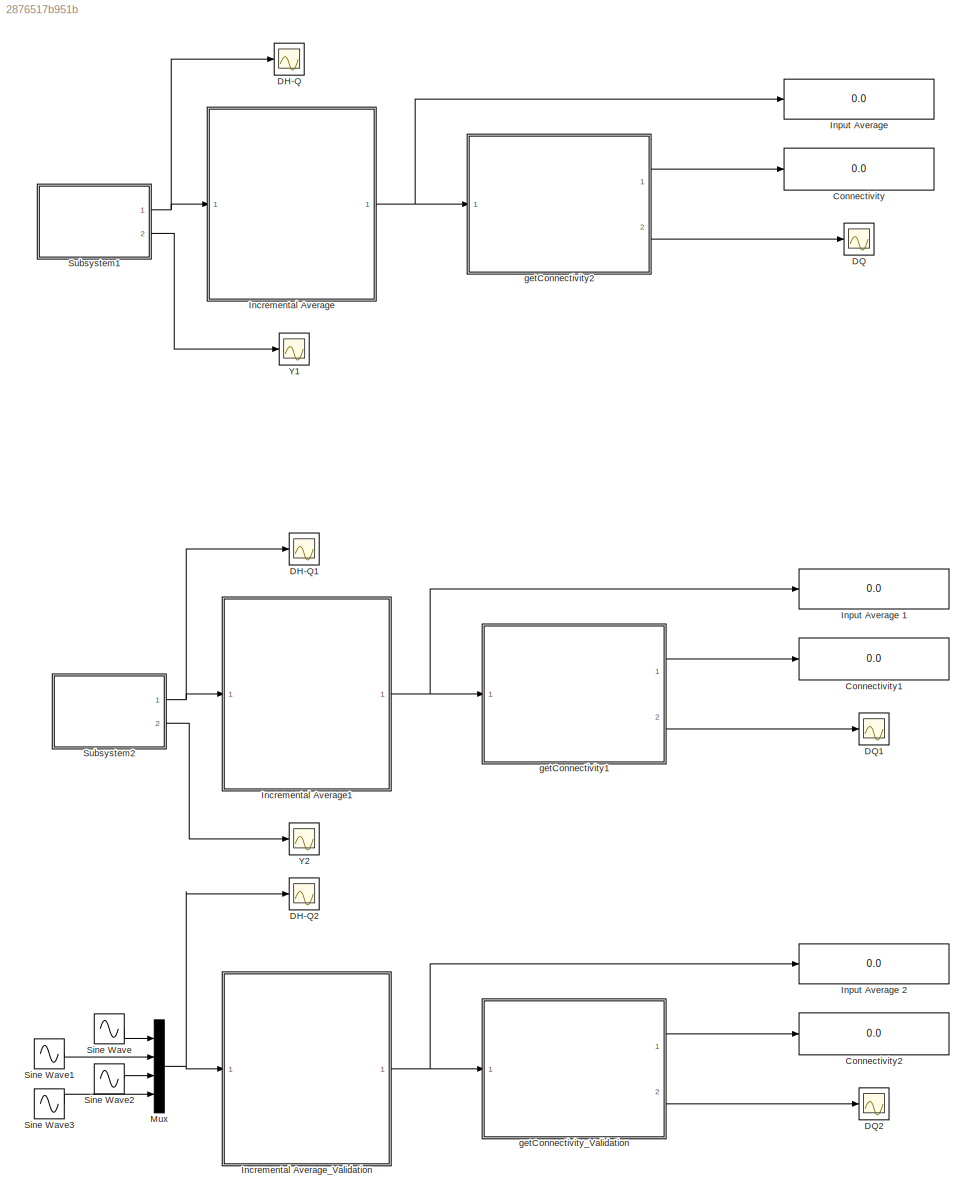
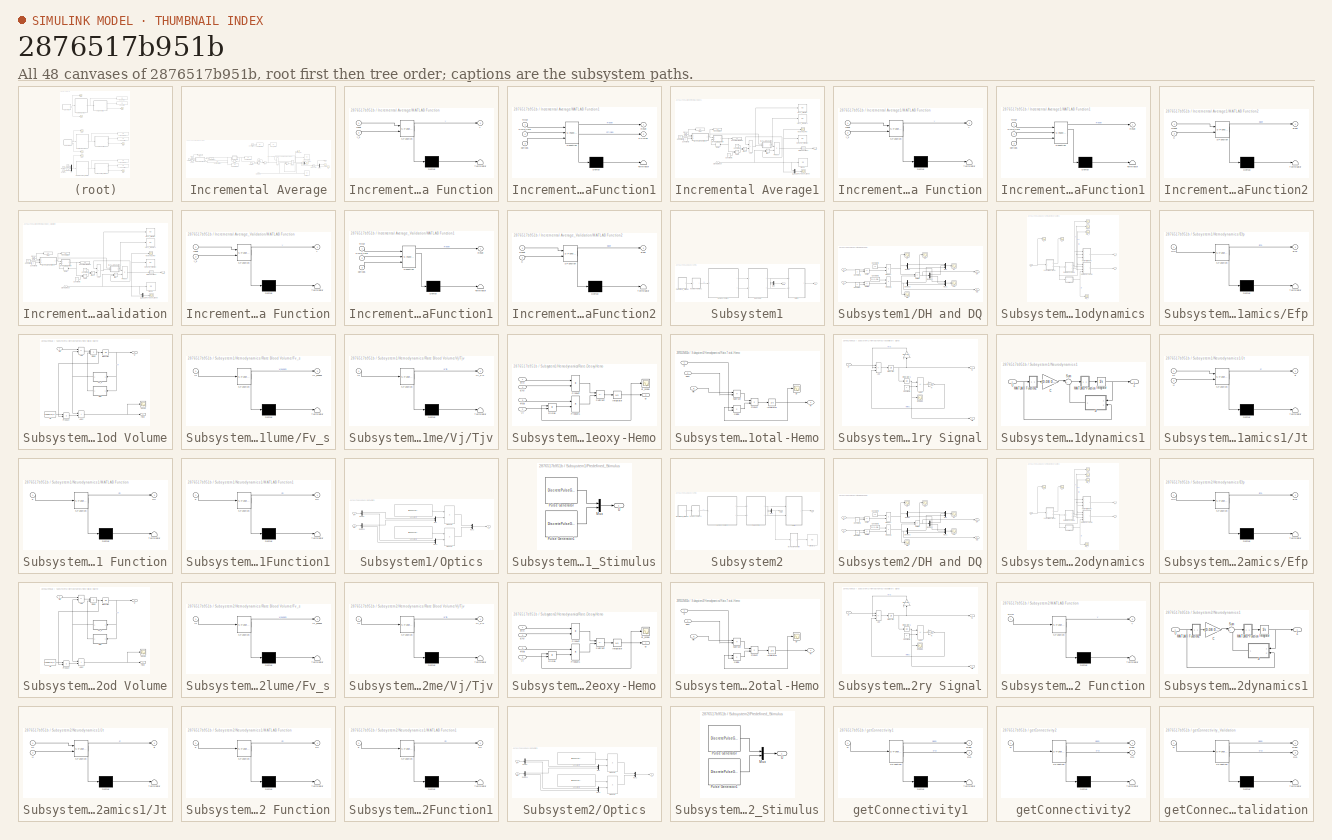
[diagram: thumbnail index - all 48 canvases of the model, root first then tree order]
MODEL slx_2876517b951b
KIND model
CONFIG AbsTol = auto
CONFIG EnableMultiTasking = off
CONFIG FixedStep = 0.1
CONFIG MaxStep = auto
CONFIG MinStep = auto
CONFIG RelTol = 1e-3
CONFIG SampleTimeConstraint = Unconstrained
CONFIG SolverName = VariableStepAuto
CONFIG StartTime = 0.0
CONFIG StopTime = 60
BLOCK [Display] Connectivity
  Decimation = 1
  Ports = [1]
BLOCK [Display] Connectivity1
  Decimation = 1
  Ports = [1]
BLOCK [Display] Connectivity2
  Decimation = 1
  Ports = [1]
BLOCK [Scope] DH-Q
  Floating = off
  NumInputPorts = 1
  Ports = [1]
  ScopeSpecificationString = Simulink.scopes.TimeScopeBlockCfg('CurrentConfiguration', extmgr.ConfigurationSet(extmgr.Configuration('Core','General UI',true),extmgr.Configuration('Core','Source UI',true),extmgr.Configuration('Sources','WiredSimulink',true,'DataLoggingVariableName','ScopeData2'),extmgr.Configuration('Visuals','Time Domain',true,'SerializedDisplays',{struct('MinYLimReal','-2.07335','MaxYLimReal','10.17259','YLa...<+1428ch>
BLOCK [Scope] DH-Q1
  Floating = off
  NumInputPorts = 1
  Ports = [1]
  ScopeSpecificationString = Simulink.scopes.TimeScopeBlockCfg('CurrentConfiguration', extmgr.ConfigurationSet(extmgr.Configuration('Core','General UI',true),extmgr.Configuration('Core','Source UI',true),extmgr.Configuration('Sources','WiredSimulink',true,'DataLoggingVariableName','ScopeData1'),extmgr.Configuration('Visuals','Time Domain',true,'SerializedDisplays',{struct('MinYLimReal','-2.07335','MaxYLimReal','10.17259','YLa...<+1458ch>
BLOCK [Scope] DH-Q2
  Floating = off
  NumInputPorts = 1
  Ports = [1]
  ScopeSpecificationString = Simulink.scopes.TimeScopeBlockCfg('CurrentConfiguration', extmgr.ConfigurationSet(extmgr.Configuration('Core','General UI',true),extmgr.Configuration('Core','Source UI',true),extmgr.Configuration('Sources','WiredSimulink',true,'DataLoggingVariableName','ScopeData1'),extmgr.Configuration('Visuals','Time Domain',true,'SerializedDisplays',{struct('MinYLimReal','-1.24995','MaxYLimReal','1.24991','YLab...<+1436ch>
BLOCK [Scope] DQ
  Floating = off
  NumInputPorts = 1
  Ports = [1]
  ScopeSpecificationString = Simulink.scopes.TimeScopeBlockCfg('CurrentConfiguration', extmgr.ConfigurationSet(extmgr.Configuration('Core','General UI',true,'FigureColor',[0 0 0]),extmgr.Configuration('Core','Source UI',true),extmgr.Configuration('Sources','WiredSimulink',true,'DataLoggingVariableName','ScopeData1'),extmgr.Configuration('Visuals','Time Domain',true,'SerializedDisplays',{struct('MinYLimReal','-1.02569','MaxYLi...<+2082ch>
BLOCK [Scope] DQ1
  Floating = off
  NumInputPorts = 1
  Ports = [1]
  ScopeSpecificationString = Simulink.scopes.TimeScopeBlockCfg('CurrentConfiguration', extmgr.ConfigurationSet(extmgr.Configuration('Core','General UI',true,'FigureColor',[0 0 0]),extmgr.Configuration('Core','Source UI',true),extmgr.Configuration('Sources','WiredSimulink',true,'DataLoggingVariableName','ScopeData3'),extmgr.Configuration('Visuals','Time Domain',true,'SerializedDisplays',{struct('MinYLimReal','-1.02569','MaxYLi...<+2082ch>
BLOCK [Scope] DQ2
  Floating = off
  NumInputPorts = 1
  Ports = [1]
  ScopeSpecificationString = Simulink.scopes.TimeScopeBlockCfg('CurrentConfiguration', extmgr.ConfigurationSet(extmgr.Configuration('Core','General UI',true,'FigureColor',[0 0 0]),extmgr.Configuration('Core','Source UI',true),extmgr.Configuration('Sources','WiredSimulink',true,'DataLoggingVariableName','ScopeData2'),extmgr.Configuration('Visuals','Time Domain',true,'SerializedDisplays',{struct('MinYLimReal','-0.14392','MaxYLi...<+2102ch>
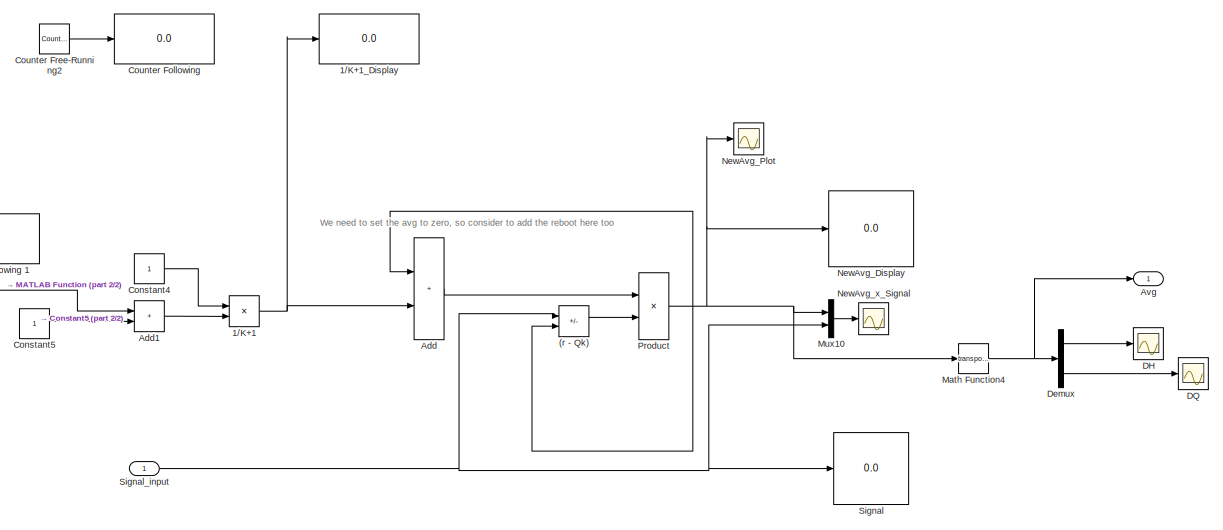
[diagram: Incremental Average - part 1/2, right side, full height]
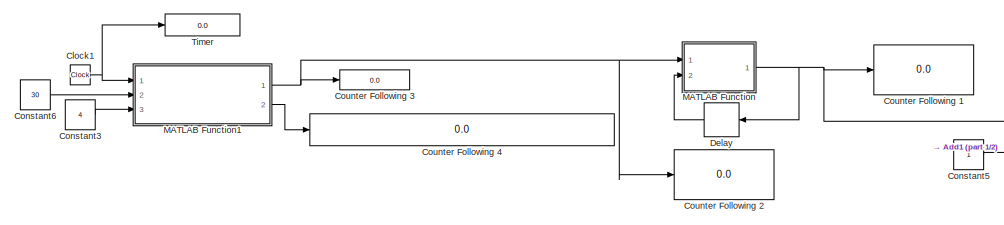
[diagram: Incremental Average - part 2/2, middle left region]
BLOCK [SubSystem] Incremental Average
  Ports = [1, 1]
  RequestExecContextInheritance = off
BLOCK [Sum] Incremental Average/(r - Qk)
  IconShape = rectangular
  Inputs = +-
  Ports = [2, 1]
BLOCK [Product] Incremental Average/1//K+1
  Inputs = */
  Ports = [2, 1]
BLOCK [Display] Incremental Average/1//K+1_Display
  Decimation = 1
  Ports = [1]
BLOCK [Sum] Incremental Average/Add
  IconShape = rectangular
  Ports = [2, 1]
BLOCK [Sum] Incremental Average/Add1
  IconShape = rectangular
  Ports = [2, 1]
BLOCK [Outport] Incremental Average/Avg
BLOCK [Clock] Incremental Average/Clock1
BLOCK [Constant] Incremental Average/Constant3
  Value = 4
BLOCK [Constant] Incremental Average/Constant4
BLOCK [Constant] Incremental Average/Constant5
BLOCK [Constant] Incremental Average/Constant6
  Value = 30
BLOCK [Display] Incremental Average/Counter Following 
  Decimation = 1
  Ports = [1]
BLOCK [Display] Incremental Average/Counter Following 1
  Decimation = 1
  Ports = [1]
BLOCK [Display] Incremental Average/Counter Following 2
  Decimation = 1
  Ports = [1]
BLOCK [Display] Incremental Average/Counter Following 3
  Decimation = 1
  Ports = [1]
BLOCK [Display] Incremental Average/Counter Following 4
  Decimation = 1
  Ports = [1]
BLOCK [Reference] Incremental Average/Counter Free-Running2  REF=simulink/Sources/Counter
Free-Running
  Ports = [0, 1]
  SourceBlock = simulink/Sources/Counter\nFree-Running
  SourceProductBaseCode = SL
  SourceType = Counter Free-Running
BLOCK [Scope] Incremental Average/DH
  Floating = off
  NumInputPorts = 1
  Ports = [1]
  ScopeSpecificationString = Simulink.scopes.TimeScopeBlockCfg('CurrentConfiguration', extmgr.ConfigurationSet(extmgr.Configuration('Core','General UI',true,'FigureColor',[0 0 0]),extmgr.Configuration('Core','Source UI',true),extmgr.Configuration('Sources','WiredSimulink',true,'DataLoggingVariableName','ScopeData7'),extmgr.Configuration('Visuals','Time Domain',true,'SerializedDisplays',{struct('MinYLimReal','-1.75363','MaxYLi...<+2059ch>
BLOCK [Scope] Incremental Average/DQ
  Floating = off
  NumInputPorts = 1
  Ports = [1]
  ScopeSpecificationString = Simulink.scopes.TimeScopeBlockCfg('CurrentConfiguration', extmgr.ConfigurationSet(extmgr.Configuration('Core','General UI',true,'FigureColor',[0 0 0]),extmgr.Configuration('Core','Source UI',true),extmgr.Configuration('Sources','WiredSimulink',true,'DataLoggingVariableName','ScopeData6'),extmgr.Configuration('Visuals','Time Domain',true,'SerializedDisplays',{struct('MinYLimReal','-0.00831','MaxYLi...<+2059ch>
BLOCK [Delay] Incremental Average/Delay
  DelayLength = 1
  InitialCondition = 0
  InputPortMap = u0
  Ports = [1, 1]
BLOCK [Demux] Incremental Average/Demux
  Outputs = 2
  Ports = [1, 2]
BLOCK [SubSystem] Incremental Average/MATLAB Function
  ErrorFcn = Stateflow.Translate.translate
  PermitHierarchicalResolution = ExplicitOnly
  Ports = [2, 1]
  RequestExecContextInheritance = off
  SFBlockType = MATLAB Function
  TreatAsAtomicUnit = on
BLOCK [Demux] Incremental Average/MATLAB Function/ Demux 
  Outputs = 1
  Ports = [1, 1]
BLOCK [S-Function] Incremental Average/MATLAB Function/ SFunction 
  EnableBusSupport = off
  FunctionName = sf_sfun
  PortCounts = [2 2]
  Ports = [2, 2]
  SFcnIsStateOwnerBlock = off
  SFunctionDeploymentMode = off
  Tag = Stateflow S-Function 17
BLOCK [Terminator] Incremental Average/MATLAB Function/ Terminator 
BLOCK [Inport] Incremental Average/MATLAB Function/reset
BLOCK [Outport] Incremental Average/MATLAB Function/y
BLOCK [Inport] Incremental Average/MATLAB Function/y_s
  Port = 2
BLOCK [SubSystem] Incremental Average/MATLAB Function1
  ErrorFcn = Stateflow.Translate.translate
  PermitHierarchicalResolution = ExplicitOnly
  Ports = [3, 2]
  RequestExecContextInheritance = off
  SFBlockType = MATLAB Function
  TreatAsAtomicUnit = on
BLOCK [Demux] Incremental Average/MATLAB Function1/ Demux 
  Outputs = 1
  Ports = [1, 1]
BLOCK [S-Function] Incremental Average/MATLAB Function1/ SFunction 
  EnableBusSupport = off
  FunctionName = sf_sfun
  PortCounts = [3 3]
  Ports = [3, 3]
  SFcnIsStateOwnerBlock = off
  SFunctionDeploymentMode = off
  Tag = Stateflow S-Function 18
BLOCK [Terminator] Incremental Average/MATLAB Function1/ Terminator 
BLOCK [Inport] Incremental Average/MATLAB Function1/Cycle_time
  Port = 2
BLOCK [Outport] Incremental Average/MATLAB Function1/PCycles
  Port = 2
BLOCK [Outport] Incremental Average/MATLAB Function1/Reset
BLOCK [Inport] Incremental Average/MATLAB Function1/Timer
BLOCK [Inport] Incremental Average/MATLAB Function1/periods
  Port = 3
BLOCK [Math] Incremental Average/Math Function4
  Operator = transpose
  Ports = [1, 1]
BLOCK [Mux] Incremental Average/Mux10
  DisplayOption = bar
  Inputs = 2
  Ports = [2, 1]
BLOCK [Display] Incremental Average/NewAvg_Display
  Decimation = 1
  Ports = [1]
BLOCK [Scope] Incremental Average/NewAvg_Plot
  Floating = off
  NumInputPorts = 1
  Ports = [1]
  ScopeSpecificationString = Simulink.scopes.TimeScopeBlockCfg('CurrentConfiguration', extmgr.ConfigurationSet(extmgr.Configuration('Core','General UI',true,'FigureColor',[0 0 0]),extmgr.Configuration('Core','Source UI',true),extmgr.Configuration('Sources','WiredSimulink',true,'DataLoggingVariableName','ScopeData3'),extmgr.Configuration('Visuals','Time Domain',true,'SerializedDisplays',{struct('MinYLimReal','-1.75915','MaxYLi...<+2137ch>
BLOCK [Scope] Incremental Average/NewAvg_x_Signal
  Floating = off
  NumInputPorts = 1
  Ports = [1]
  ScopeSpecificationString = Simulink.scopes.TimeScopeBlockCfg('CurrentConfiguration', extmgr.ConfigurationSet(extmgr.Configuration('Core','General UI',true,'FigureColor',[0 0 0]),extmgr.Configuration('Core','Source UI',true),extmgr.Configuration('Sources','WiredSimulink',true,'DataLoggingVariableName','ScopeData1'),extmgr.Configuration('Visuals','Time Domain',true,'SerializedDisplays',{struct('MinYLimReal','-3.49776','MaxYLi...<+2205ch>  <repeated x3 — deduplicated; at blocks: NewAvg_x_Signal>
BLOCK [Product] Incremental Average/Product
  Ports = [2, 1]
BLOCK [Display] Incremental Average/Signal
  Decimation = 1
  Ports = [1]
BLOCK [Inport] Incremental Average/Signal_input
BLOCK [Display] Incremental Average/Timer
  Decimation = 1
  Ports = [1]
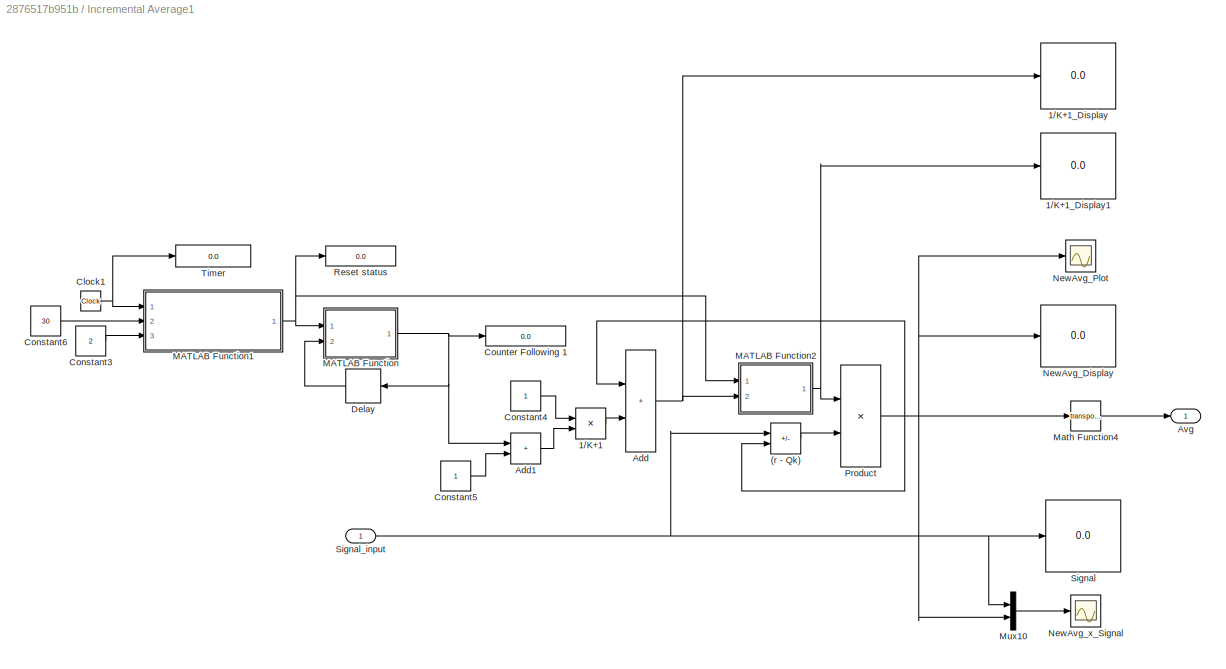
BLOCK [SubSystem] Incremental Average1
  Ports = [1, 1]
  RequestExecContextInheritance = off
BLOCK [Sum] Incremental Average1/(r - Qk)
  IconShape = rectangular
  Inputs = +-
  Ports = [2, 1]
BLOCK [Product] Incremental Average1/1//K+1
  Inputs = */
  Ports = [2, 1]
BLOCK [Display] Incremental Average1/1//K+1_Display
  Decimation = 1
  Ports = [1]
BLOCK [Display] Incremental Average1/1//K+1_Display1
  Decimation = 1
  Ports = [1]
BLOCK [Sum] Incremental Average1/Add
  IconShape = rectangular
  Ports = [2, 1]
BLOCK [Sum] Incremental Average1/Add1
  IconShape = rectangular
  Ports = [2, 1]
BLOCK [Outport] Incremental Average1/Avg
BLOCK [Clock] Incremental Average1/Clock1
BLOCK [Constant] Incremental Average1/Constant3
  Value = 2
BLOCK [Constant] Incremental Average1/Constant4
BLOCK [Constant] Incremental Average1/Constant5
BLOCK [Constant] Incremental Average1/Constant6
  Value = 30
BLOCK [Display] Incremental Average1/Counter Following 1
  Decimation = 1
  Ports = [1]
BLOCK [Delay] Incremental Average1/Delay
  DelayLength = 1
  InitialCondition = 0
  InputPortMap = u0
  Ports = [1, 1]
BLOCK [SubSystem] Incremental Average1/MATLAB Function
  ErrorFcn = Stateflow.Translate.translate
  PermitHierarchicalResolution = ExplicitOnly
  Ports = [2, 1]
  RequestExecContextInheritance = off
  SFBlockType = MATLAB Function
  TreatAsAtomicUnit = on
BLOCK [Demux] Incremental Average1/MATLAB Function/ Demux 
  Outputs = 1
  Ports = [1, 1]
BLOCK [S-Function] Incremental Average1/MATLAB Function/ SFunction 
  EnableBusSupport = off
  FunctionName = sf_sfun
  PortCounts = [2 2]
  Ports = [2, 2]
  SFcnIsStateOwnerBlock = off
  SFunctionDeploymentMode = off
  Tag = Stateflow S-Function 1
BLOCK [Terminator] Incremental Average1/MATLAB Function/ Terminator 
BLOCK [Inport] Incremental Average1/MATLAB Function/reset
BLOCK [Outport] Incremental Average1/MATLAB Function/y
BLOCK [Inport] Incremental Average1/MATLAB Function/y_s
  Port = 2
BLOCK [SubSystem] Incremental Average1/MATLAB Function1
  ErrorFcn = Stateflow.Translate.translate
  PermitHierarchicalResolution = ExplicitOnly
  Ports = [3, 1]
  RequestExecContextInheritance = off
  SFBlockType = MATLAB Function
  TreatAsAtomicUnit = on
BLOCK [Demux] Incremental Average1/MATLAB Function1/ Demux 
  Outputs = 1
  Ports = [1, 1]
BLOCK [S-Function] Incremental Average1/MATLAB Function1/ SFunction 
  EnableBusSupport = off
  FunctionName = sf_sfun
  PortCounts = [3 2]
  Ports = [3, 2]
  SFcnIsStateOwnerBlock = off
  SFunctionDeploymentMode = off
  Tag = Stateflow S-Function 2
BLOCK [Terminator] Incremental Average1/MATLAB Function1/ Terminator 
BLOCK [Inport] Incremental Average1/MATLAB Function1/Cycle_time
  Port = 2
BLOCK [Outport] Incremental Average1/MATLAB Function1/Reset
BLOCK [Inport] Incremental Average1/MATLAB Function1/Timer
BLOCK [Inport] Incremental Average1/MATLAB Function1/periods
  Port = 3
BLOCK [SubSystem] Incremental Average1/MATLAB Function2
  ErrorFcn = Stateflow.Translate.translate
  PermitHierarchicalResolution = ExplicitOnly
  Ports = [2, 1]
  RequestExecContextInheritance = off
  SFBlockType = MATLAB Function
  TreatAsAtomicUnit = on
BLOCK [Demux] Incremental Average1/MATLAB Function2/ Demux 
  Outputs = 1
  Ports = [1, 1]
BLOCK [S-Function] Incremental Average1/MATLAB Function2/ SFunction 
  EnableBusSupport = off
  FunctionName = sf_sfun
  PortCounts = [2 2]
  Ports = [2, 2]
  SFcnIsStateOwnerBlock = off
  SFunctionDeploymentMode = off
  Tag = Stateflow S-Function 10
BLOCK [Terminator] Incremental Average1/MATLAB Function2/ Terminator 
BLOCK [Outport] Incremental Average1/MATLAB Function2/Boot
BLOCK [Inport] Incremental Average1/MATLAB Function2/K
  Port = 2
BLOCK [Inport] Incremental Average1/MATLAB Function2/Reset
BLOCK [Math] Incremental Average1/Math Function4
  Operator = transpose
  Ports = [1, 1]
BLOCK [Mux] Incremental Average1/Mux10
  DisplayOption = bar
  Inputs = 2
  Ports = [2, 1]
BLOCK [Display] Incremental Average1/NewAvg_Display
  Decimation = 1
  Ports = [1]
BLOCK [Scope] Incremental Average1/NewAvg_Plot
  Floating = off
  NumInputPorts = 1
  Ports = [1]
  ScopeSpecificationString = Simulink.scopes.TimeScopeBlockCfg('CurrentConfiguration', extmgr.ConfigurationSet(extmgr.Configuration('Core','General UI',true,'FigureColor',[0 0 0]),extmgr.Configuration('Core','Source UI',true),extmgr.Configuration('Sources','WiredSimulink',true,'DataLoggingVariableName','ScopeData3'),extmgr.Configuration('Visuals','Time Domain',true,'SerializedDisplays',{struct('MinYLimReal','-1.09477','MaxYLi...<+2094ch>
BLOCK [Scope] Incremental Average1/NewAvg_x_Signal
  Floating = off
  NumInputPorts = 1
  Ports = [1]
BLOCK [Product] Incremental Average1/Product
  Ports = [2, 1]
BLOCK [Display] Incremental Average1/Reset status
  Decimation = 1
  Ports = [1]
BLOCK [Display] Incremental Average1/Signal
  Decimation = 1
  Ports = [1]
BLOCK [Inport] Incremental Average1/Signal_input
BLOCK [Display] Incremental Average1/Timer
  Decimation = 1
  Ports = [1]
BLOCK [SubSystem] Incremental Average_Validation
  Ports = [1, 1]
  RequestExecContextInheritance = off
BLOCK [Sum] Incremental Average_Validation/(r - Qk)
  IconShape = rectangular
  Inputs = +-
  Ports = [2, 1]
BLOCK [Product] Incremental Average_Validation/1//K+1
  Inputs = */
  Ports = [2, 1]
BLOCK [Display] Incremental Average_Validation/1//K+1_Display
  Decimation = 1
  Ports = [1]
BLOCK [Display] Incremental Average_Validation/1//K+1_Display1
  Decimation = 1
  Ports = [1]
BLOCK [Sum] Incremental Average_Validation/Add
  IconShape = rectangular
  Ports = [2, 1]
BLOCK [Sum] Incremental Average_Validation/Add1
  IconShape = rectangular
  Ports = [2, 1]
BLOCK [Outport] Incremental Average_Validation/Avg
BLOCK [Clock] Incremental Average_Validation/Clock1
BLOCK [Constant] Incremental Average_Validation/Constant3
  Value = 2
BLOCK [Constant] Incremental Average_Validation/Constant4
BLOCK [Constant] Incremental Average_Validation/Constant5
BLOCK [Constant] Incremental Average_Validation/Constant6
  Value = 30
BLOCK [Display] Incremental Average_Validation/Counter Following 1
  Decimation = 1
  Ports = [1]
BLOCK [Delay] Incremental Average_Validation/Delay
  DelayLength = 1
  InitialCondition = 0
  InputPortMap = u0
  Ports = [1, 1]
BLOCK [SubSystem] Incremental Average_Validation/MATLAB Function
  ErrorFcn = Stateflow.Translate.translate
  PermitHierarchicalResolution = ExplicitOnly
  Ports = [2, 1]
  RequestExecContextInheritance = off
  SFBlockType = MATLAB Function
  TreatAsAtomicUnit = on
BLOCK [Demux] Incremental Average_Validation/MATLAB Function/ Demux 
  Outputs = 1
  Ports = [1, 1]
BLOCK [S-Function] Incremental Average_Validation/MATLAB Function/ SFunction 
  EnableBusSupport = off
  FunctionName = sf_sfun
  PortCounts = [2 2]
  Ports = [2, 2]
  SFcnIsStateOwnerBlock = off
  SFunctionDeploymentMode = off
  Tag = Stateflow S-Function 14
BLOCK [Terminator] Incremental Average_Validation/MATLAB Function/ Terminator 
BLOCK [Inport] Incremental Average_Validation/MATLAB Function/reset
BLOCK [Outport] Incremental Average_Validation/MATLAB Function/y
BLOCK [Inport] Incremental Average_Validation/MATLAB Function/y_s
  Port = 2
BLOCK [SubSystem] Incremental Average_Validation/MATLAB Function1
  ErrorFcn = Stateflow.Translate.translate
  PermitHierarchicalResolution = ExplicitOnly
  Ports = [3, 1]
  RequestExecContextInheritance = off
  SFBlockType = MATLAB Function
  TreatAsAtomicUnit = on
BLOCK [Demux] Incremental Average_Validation/MATLAB Function1/ Demux 
  Outputs = 1
  Ports = [1, 1]
BLOCK [S-Function] Incremental Average_Validation/MATLAB Function1/ SFunction 
  EnableBusSupport = off
  FunctionName = sf_sfun
  PortCounts = [3 2]
  Ports = [3, 2]
  SFcnIsStateOwnerBlock = off
  SFunctionDeploymentMode = off
  Tag = Stateflow S-Function 15
BLOCK [Terminator] Incremental Average_Validation/MATLAB Function1/ Terminator 
BLOCK [Inport] Incremental Average_Validation/MATLAB Function1/Cycle_time
  Port = 2
BLOCK [Outport] Incremental Average_Validation/MATLAB Function1/Reset
BLOCK [Inport] Incremental Average_Validation/MATLAB Function1/Timer
BLOCK [Inport] Incremental Average_Validation/MATLAB Function1/periods
  Port = 3
BLOCK [SubSystem] Incremental Average_Validation/MATLAB Function2
  ErrorFcn = Stateflow.Translate.translate
  PermitHierarchicalResolution = ExplicitOnly
  Ports = [2, 1]
  RequestExecContextInheritance = off
  SFBlockType = MATLAB Function
  TreatAsAtomicUnit = on
BLOCK [Demux] Incremental Average_Validation/MATLAB Function2/ Demux 
  Outputs = 1
  Ports = [1, 1]
BLOCK [S-Function] Incremental Average_Validation/MATLAB Function2/ SFunction 
  EnableBusSupport = off
  FunctionName = sf_sfun
  PortCounts = [2 2]
  Ports = [2, 2]
  SFcnIsStateOwnerBlock = off
  SFunctionDeploymentMode = off
  Tag = Stateflow S-Function 24
BLOCK [Terminator] Incremental Average_Validation/MATLAB Function2/ Terminator 
BLOCK [Outport] Incremental Average_Validation/MATLAB Function2/Boot
BLOCK [Inport] Incremental Average_Validation/MATLAB Function2/K
  Port = 2
BLOCK [Inport] Incremental Average_Validation/MATLAB Function2/Reset
BLOCK [Math] Incremental Average_Validation/Math Function4
  Operator = transpose
  Ports = [1, 1]
BLOCK [Mux] Incremental Average_Validation/Mux10
  DisplayOption = bar
  Inputs = 2
  Ports = [2, 1]
BLOCK [Display] Incremental Average_Validation/NewAvg_Display
  Decimation = 1
  Ports = [1]
BLOCK [Scope] Incremental Average_Validation/NewAvg_Plot
  Floating = off
  NumInputPorts = 1
  Ports = [1]
  ScopeSpecificationString = Simulink.scopes.TimeScopeBlockCfg('CurrentConfiguration', extmgr.ConfigurationSet(extmgr.Configuration('Core','General UI',true,'FigureColor',[0 0 0]),extmgr.Configuration('Core','Source UI',true),extmgr.Configuration('Sources','WiredSimulink',true,'DataLoggingVariableName','ScopeData3'),extmgr.Configuration('Visuals','Time Domain',true,'SerializedDisplays',{struct('MinYLimReal','-1.09477','MaxYLi...<+2094ch>
BLOCK [Scope] Incremental Average_Validation/NewAvg_x_Signal
  Floating = off
  NumInputPorts = 1
  Ports = [1]
BLOCK [Product] Incremental Average_Validation/Product
  Ports = [2, 1]
BLOCK [Display] Incremental Average_Validation/Reset status
  Decimation = 1
  Ports = [1]
BLOCK [Display] Incremental Average_Validation/Signal
  Decimation = 1
  Ports = [1]
BLOCK [Inport] Incremental Average_Validation/Signal_input
BLOCK [Display] Incremental Average_Validation/Timer
  Decimation = 1
  Ports = [1]
BLOCK [Display] Input Average 
  Decimation = 1
  Ports = [1]
BLOCK [Display] Input Average 1
  Decimation = 1
  Ports = [1]
BLOCK [Display] Input Average 2
  Decimation = 1
  Ports = [1]
BLOCK [Mux] Mux
  DisplayOption = bar
  Ports = [4, 1]
BLOCK [Sin] Sine Wave
  Ports = [0, 1]
  SampleTime = 0
BLOCK [Sin] Sine Wave1
  Frequency = 1.6
  Ports = [0, 1]
  SampleTime = 0
BLOCK [Sin] Sine Wave2
  Frequency = 0.8
  Ports = [0, 1]
  SampleTime = 0
BLOCK [Sin] Sine Wave3
  Frequency = 1.4
  Ports = [0, 1]
  SampleTime = 0
BLOCK [SubSystem] Subsystem1
  Ports = [0, 2]
  RequestExecContextInheritance = off
BLOCK [SubSystem] Subsystem1/DH and DQ
  Ports = [2, 2]
  RequestExecContextInheritance = off
BLOCK [Constant] Subsystem1/DH and DQ/Constant
BLOCK [Constant] Subsystem1/DH and DQ/Constant1
BLOCK [Constant] Subsystem1/DH and DQ/Constant2
  Value = 71
BLOCK [Constant] Subsystem1/DH and DQ/Constant3
  Value = 71*(1 - 0.65)
BLOCK [Scope] Subsystem1/DH and DQ/D-H
  Floating = off
  NumInputPorts = 1
  Ports = [1]
  ScopeSpecificationString = Simulink.scopes.TimeScopeBlockCfg('CurrentConfiguration', extmgr.ConfigurationSet(extmgr.Configuration('Core','General UI',true),extmgr.Configuration('Core','Source UI',true),extmgr.Configuration('Sources','WiredSimulink',true,'DataLoggingVariableName','ScopeData7'),extmgr.Configuration('Visuals','Time Domain',true,'SerializedDisplays',{struct('MinYLimReal','-2.91276','MaxYLimReal','17.16126','YLa...<+1449ch>
BLOCK [Scope] Subsystem1/DH and DQ/D-P
  Floating = off
  NumInputPorts = 1
  Ports = [1]
  ScopeSpecificationString = Simulink.scopes.TimeScopeBlockCfg('CurrentConfiguration', extmgr.ConfigurationSet(extmgr.Configuration('Core','General UI',true),extmgr.Configuration('Core','Source UI',true),extmgr.Configuration('Sources','WiredSimulink',true,'DataLoggingVariableName','ScopeData5'),extmgr.Configuration('Visuals','Time Domain',true,'SerializedDisplays',{struct('MinYLimReal','-2.54989','MaxYLimReal','15.75385','YLa...<+1449ch>
BLOCK [Scope] Subsystem1/DH and DQ/D-Q
  Floating = off
  NumInputPorts = 1
  Ports = [1]
  ScopeSpecificationString = Simulink.scopes.TimeScopeBlockCfg('CurrentConfiguration', extmgr.ConfigurationSet(extmgr.Configuration('Core','General UI',true),extmgr.Configuration('Core','Source UI',true),extmgr.Configuration('Sources','WiredSimulink',true,'DataLoggingVariableName','ScopeData6'),extmgr.Configuration('Visuals','Time Domain',true,'SerializedDisplays',{struct('MinYLimReal','-1.63975','MaxYLimReal','0.38869','YLab...<+1447ch>
BLOCK [Outport] Subsystem1/DH and DQ/DH
BLOCK [Outport] Subsystem1/DH and DQ/DQ
  Port = 2
BLOCK [Sum] Subsystem1/DH and DQ/Delta-H
  IconShape = rectangular
  Inputs = +-
  Ports = [2, 1]
BLOCK [Sum] Subsystem1/DH and DQ/Delta-P
  IconShape = rectangular
  Inputs = +-
  Ports = [2, 1]
BLOCK [Sum] Subsystem1/DH and DQ/Delta-Q
  IconShape = rectangular
  Inputs = +-
  Ports = [2, 1]
BLOCK [Demux] Subsystem1/DH and DQ/Demux
  Outputs = 2
  Ports = [1, 2]
BLOCK [Demux] Subsystem1/DH and DQ/Demux1
  Outputs = 2
  Ports = [1, 2]
BLOCK [Demux] Subsystem1/DH and DQ/Demux2
  Outputs = 2
  Ports = [1, 2]
BLOCK [Scope] Subsystem1/DH and DQ/M1
  Floating = off
  NumInputPorts = 1
  Ports = [1]
  ScopeSpecificationString = Simulink.scopes.TimeScopeBlockCfg('CurrentConfiguration', extmgr.ConfigurationSet(extmgr.Configuration('Core','General UI',true),extmgr.Configuration('Core','Source UI',true),extmgr.Configuration('Sources','WiredSimulink',true,'DataLoggingVariableName','ScopeData8'),extmgr.Configuration('Visuals','Time Domain',true,'SerializedDisplays',{struct('MinYLimReal','-3.32107','MaxYLimReal','11.14492','YLa...<+1768ch>
BLOCK [Mux] Subsystem1/DH and DQ/Mux
  DisplayOption = bar
  Inputs = 3
  Ports = [3, 1]
BLOCK [Mux] Subsystem1/DH and DQ/Mux1
  DisplayOption = bar
  Inputs = 3
  Ports = [3, 1]
BLOCK [Product] Subsystem1/DH and DQ/Product
  Ports = [2, 1]
BLOCK [Product] Subsystem1/DH and DQ/Product1
  Ports = [2, 1]
BLOCK [Scope] Subsystem1/DH and DQ/SMA
  Floating = off
  NumInputPorts = 1
  Ports = [1]
  ScopeSpecificationString = Simulink.scopes.TimeScopeBlockCfg('CurrentConfiguration', extmgr.ConfigurationSet(extmgr.Configuration('Core','General UI',true),extmgr.Configuration('Core','Source UI',true),extmgr.Configuration('Sources','WiredSimulink',true,'DataLoggingVariableName','ScopeData9'),extmgr.Configuration('Visuals','Time Domain',true,'SerializedDisplays',{struct('MinYLimReal','-6.21377','MaxYLimReal','17.71331','YLa...<+1773ch>
BLOCK [Inport] Subsystem1/DH and DQ/pj
BLOCK [Inport] Subsystem1/DH and DQ/qj
  Port = 2
BLOCK [Outport] Subsystem1/DH-Q
BLOCK [SubSystem] Subsystem1/Hemodynamics
  Ports = [1, 2]
  RequestExecContextInheritance = off
BLOCK [SubSystem] Subsystem1/Hemodynamics/Efp
  ErrorFcn = Stateflow.Translate.translate
  PermitHierarchicalResolution = ExplicitOnly
  Ports = [1, 1]
  RequestExecContextInheritance = off
  SFBlockType = MATLAB Function
  TreatAsAtomicUnit = on
BLOCK [Demux] Subsystem1/Hemodynamics/Efp/ Demux 
  Outputs = 1
  Ports = [1, 1]
BLOCK [S-Function] Subsystem1/Hemodynamics/Efp/ SFunction 
  EnableBusSupport = off
  FunctionName = sf_sfun
  PortCounts = [1 2]
  Ports = [1, 2]
  SFcnIsStateOwnerBlock = off
  SFunctionDeploymentMode = off
  Tag = Stateflow S-Function 11
BLOCK [Terminator] Subsystem1/Hemodynamics/Efp/ Terminator 
BLOCK [Outport] Subsystem1/Hemodynamics/Efp/Efp
BLOCK [Inport] Subsystem1/Hemodynamics/Efp/fjin
BLOCK [Scope] Subsystem1/Hemodynamics/Efp_1
  Floating = off
  NumInputPorts = 1
  Ports = [1]
  ScopeSpecificationString = Simulink.scopes.TimeScopeBlockCfg('CurrentConfiguration', extmgr.ConfigurationSet(extmgr.Configuration('Core','General UI',true),extmgr.Configuration('Core','Source UI',true),extmgr.Configuration('Sources','WiredSimulink',true,'DataLoggingVariableName','ScopeData7'),extmgr.Configuration('Visuals','Time Domain',true,'SerializedDisplays',{struct('MinYLimReal','0.87922','MaxYLimReal','1.03497','YLabe...<+1400ch>
BLOCK [Scope] Subsystem1/Hemodynamics/Fjin_1
  Floating = off
  NumInputPorts = 1
  Ports = [1]
  ScopeSpecificationString = Simulink.scopes.TimeScopeBlockCfg('CurrentConfiguration', extmgr.ConfigurationSet(extmgr.Configuration('Core','General UI',true),extmgr.Configuration('Core','Source UI',true),extmgr.Configuration('Sources','WiredSimulink',true,'DataLoggingVariableName','ScopeData6'),extmgr.Configuration('Visuals','Time Domain',true,'SerializedDisplays',{struct('MinYLimReal','0.91944','MaxYLimReal','1.21553','YLabe...<+1402ch>
BLOCK [Scope] Subsystem1/Hemodynamics/Fjout
  Floating = off
  NumInputPorts = 1
  Ports = [1]
  ScopeSpecificationString = Simulink.scopes.TimeScopeBlockCfg('CurrentConfiguration', extmgr.ConfigurationSet(extmgr.Configuration('Core','General UI',true),extmgr.Configuration('Core','Source UI',true),extmgr.Configuration('Sources','WiredSimulink',true,'DataLoggingVariableName','ScopeData5'),extmgr.Configuration('Visuals','Time Domain',true,'SerializedDisplays',{struct('MinYLimReal','0.96309','MaxYLimReal','1.1501','YLabel...<+1400ch>
BLOCK [Outport] Subsystem1/Hemodynamics/Pj
BLOCK [SubSystem] Subsystem1/Hemodynamics/Rate Blood Volume
  Ports = [1, 2]
  RequestExecContextInheritance = off
BLOCK [Sum] Subsystem1/Hemodynamics/Rate Blood Volume/Add
  IconShape = rectangular
  Inputs = +-
  Ports = [2, 1]
BLOCK [Sum] Subsystem1/Hemodynamics/Rate Blood Volume/Add1
  IconShape = rectangular
  Ports = [2, 1]
BLOCK [Product] Subsystem1/Hemodynamics/Rate Blood Volume/Divide
  Inputs = */
  Ports = [2, 1]
BLOCK [Inport] Subsystem1/Hemodynamics/Rate Blood Volume/Fjin
BLOCK [Outport] Subsystem1/Hemodynamics/Rate Blood Volume/Fjout
  Port = 2
BLOCK [SubSystem] Subsystem1/Hemodynamics/Rate Blood Volume/Fv_s
  ErrorFcn = Stateflow.Translate.translate
  PermitHierarchicalResolution = ExplicitOnly
  Ports = [1, 1]
  RequestExecContextInheritance = off
  SFBlockType = MATLAB Function
  TreatAsAtomicUnit = on
BLOCK [Demux] Subsystem1/Hemodynamics/Rate Blood Volume/Fv_s/ Demux 
  Outputs = 1
  Ports = [1, 1]
BLOCK [S-Function] Subsystem1/Hemodynamics/Rate Blood Volume/Fv_s/ SFunction 
  EnableBusSupport = off
  FunctionName = sf_sfun
  PortCounts = [1 2]
  Ports = [1, 2]
  SFcnIsStateOwnerBlock = off
  SFunctionDeploymentMode = off
  Tag = Stateflow S-Function 12
BLOCK [Terminator] Subsystem1/Hemodynamics/Rate Blood Volume/Fv_s/ Terminator 
BLOCK [Inport] Subsystem1/Hemodynamics/Rate Blood Volume/Fv_s/Vj
BLOCK [Outport] Subsystem1/Hemodynamics/Rate Blood Volume/Fv_s/Vj_expphi
BLOCK [Integrator] Subsystem1/Hemodynamics/Rate Blood Volume/Integrator
  InitialCondition = exp([0;0])
  Ports = [1, 1]
BLOCK [Product] Subsystem1/Hemodynamics/Rate Blood Volume/Product
  Ports = [2, 1]
BLOCK [Scope] Subsystem1/Hemodynamics/Rate Blood Volume/Scope
  Floating = off
  NumInputPorts = 1
  Ports = [1]
  ScopeSpecificationString = Simulink.scopes.TimeScopeBlockCfg('CurrentConfiguration', extmgr.ConfigurationSet(extmgr.Configuration('Core','General UI',true),extmgr.Configuration('Core','Source UI',true),extmgr.Configuration('Sources','WiredSimulink',true,'DataLoggingVariableName','ScopeData2'),extmgr.Configuration('Visuals','Time Domain',true,'SerializedDisplays',{struct('MinYLimReal','0.96417','MaxYLimReal','1.14994','YLabe...<+1372ch>
BLOCK [Constant] Subsystem1/Hemodynamics/Rate Blood Volume/Tjv
  Value = 2*exp([0;1])
BLOCK [Outport] Subsystem1/Hemodynamics/Rate Blood Volume/Vj
BLOCK [SubSystem] Subsystem1/Hemodynamics/Rate Blood Volume/Vj//Tjv
  ErrorFcn = Stateflow.Translate.translate
  PermitHierarchicalResolution = ExplicitOnly
  Ports = [1, 1]
  RequestExecContextInheritance = off
  SFBlockType = MATLAB Function
  TreatAsAtomicUnit = on
BLOCK [Demux] Subsystem1/Hemodynamics/Rate Blood Volume/Vj//Tjv/ Demux 
  Outputs = 1
  Ports = [1, 1]
BLOCK [S-Function] Subsystem1/Hemodynamics/Rate Blood Volume/Vj//Tjv/ SFunction 
  EnableBusSupport = off
  FunctionName = sf_sfun
  PortCounts = [1 2]
  Ports = [1, 2]
  SFcnIsStateOwnerBlock = off
  SFunctionDeploymentMode = off
  Tag = Stateflow S-Function 19
BLOCK [Terminator] Subsystem1/Hemodynamics/Rate Blood Volume/Vj//Tjv/ Terminator 
BLOCK [Inport] Subsystem1/Hemodynamics/Rate Blood Volume/Vj//Tjv/Vj
BLOCK [Outport] Subsystem1/Hemodynamics/Rate Blood Volume/Vj//Tjv/Vj_Tjv
BLOCK [SubSystem] Subsystem1/Hemodynamics/Rate-Deoxy-Hemo
  Ports = [4, 1]
  RequestExecContextInheritance = off
BLOCK [Product] Subsystem1/Hemodynamics/Rate-Deoxy-Hemo/Divide
  Inputs = */
  Ports = [2, 1]
BLOCK [Inport] Subsystem1/Hemodynamics/Rate-Deoxy-Hemo/Efp
  Port = 4
BLOCK [Inport] Subsystem1/Hemodynamics/Rate-Deoxy-Hemo/Fjin
BLOCK [Inport] Subsystem1/Hemodynamics/Rate-Deoxy-Hemo/Fjout
  Port = 3
BLOCK [Integrator] Subsystem1/Hemodynamics/Rate-Deoxy-Hemo/Integrator
  InitialCondition = exp([0;0])
  Ports = [1, 1]
BLOCK [Product] Subsystem1/Hemodynamics/Rate-Deoxy-Hemo/Product
  Ports = [2, 1]
BLOCK [Product] Subsystem1/Hemodynamics/Rate-Deoxy-Hemo/Product1
  Ports = [2, 1]
BLOCK [Sum] Subsystem1/Hemodynamics/Rate-Deoxy-Hemo/Subtract
  IconShape = rectangular
  Inputs = +-
  Ports = [2, 1]
BLOCK [Inport] Subsystem1/Hemodynamics/Rate-Deoxy-Hemo/Vj
  Port = 2
BLOCK [Outport] Subsystem1/Hemodynamics/Rate-Deoxy-Hemo/qj
BLOCK [Scope] Subsystem1/Hemodynamics/Rate-Deoxy-Hemo/qj_scope
  Floating = off
  NumInputPorts = 1
  Ports = [1]
  ScopeSpecificationString = Simulink.scopes.TimeScopeBlockCfg('CurrentConfiguration', extmgr.ConfigurationSet(extmgr.Configuration('Core','General UI',true),extmgr.Configuration('Core','Source UI',true),extmgr.Configuration('Sources','WiredSimulink',true,'DataLoggingVariableName','ScopeData1'),extmgr.Configuration('Visuals','Time Domain',true,'SerializedDisplays',{struct('MinYLimReal','0.9335','MaxYLimReal','1.01624','YLabel...<+1411ch>
BLOCK [SubSystem] Subsystem1/Hemodynamics/Rate-Total-Hemo
  Ports = [3, 1]
  RequestExecContextInheritance = off
BLOCK [Product] Subsystem1/Hemodynamics/Rate-Total-Hemo/Divide
  Inputs = */
  Ports = [2, 1]
BLOCK [Inport] Subsystem1/Hemodynamics/Rate-Total-Hemo/Fjin
  Port = 3
BLOCK [Inport] Subsystem1/Hemodynamics/Rate-Total-Hemo/Fjout
  Port = 2
BLOCK [Integrator] Subsystem1/Hemodynamics/Rate-Total-Hemo/Integrator
  InitialCondition = exp([0;0])
  Ports = [1, 1]
BLOCK [Outport] Subsystem1/Hemodynamics/Rate-Total-Hemo/Pj
BLOCK [Product] Subsystem1/Hemodynamics/Rate-Total-Hemo/Product
  Ports = [2, 1]
BLOCK [Sum] Subsystem1/Hemodynamics/Rate-Total-Hemo/Subtract
  IconShape = rectangular
  Inputs = +-
  Ports = [2, 1]
BLOCK [Inport] Subsystem1/Hemodynamics/Rate-Total-Hemo/Vj
BLOCK [Scope] Subsystem1/Hemodynamics/Rate-Total-Hemo/pj
  Floating = off
  NumInputPorts = 1
  Ports = [1]
  ScopeSpecificationString = Simulink.scopes.TimeScopeBlockCfg('CurrentConfiguration', extmgr.ConfigurationSet(extmgr.Configuration('Core','General UI',true),extmgr.Configuration('Core','Source UI',true),extmgr.Configuration('Sources','WiredSimulink',true,'DataLoggingVariableName','ScopeData2'),extmgr.Configuration('Visuals','Time Domain',true,'SerializedDisplays',{struct('MinYLimReal','0.96327','MaxYLimReal','1.22259','YLabe...<+1415ch>
BLOCK [Scope] Subsystem1/Hemodynamics/Sj
  Floating = off
  NumInputPorts = 1
  Ports = [1]
  ScopeSpecificationString = Simulink.scopes.TimeScopeBlockCfg('CurrentConfiguration', extmgr.ConfigurationSet(extmgr.Configuration('Core','General UI',true),extmgr.Configuration('Core','Source UI',true),extmgr.Configuration('Sources','WiredSimulink',true,'DataLoggingVariableName','ScopeData1'),extmgr.Configuration('Visuals','Time Domain',true,'SerializedDisplays',{struct('MinYLimReal','-0.05655','MaxYLimReal','0.05896','YLab...<+1438ch>
BLOCK [SubSystem] Subsystem1/Hemodynamics/Vasodilatory Signal
  Ports = [1, 2]
  RequestExecContextInheritance = off
BLOCK [Sum] Subsystem1/Hemodynamics/Vasodilatory Signal/Add
  IconShape = rectangular
  Inputs = +--
  Ports = [3, 1]
BLOCK [Sum] Subsystem1/Hemodynamics/Vasodilatory Signal/Add1
  IconShape = rectangular
  Inputs = +-
  Ports = [2, 1]
BLOCK [Constant] Subsystem1/Hemodynamics/Vasodilatory Signal/Constant1
BLOCK [Outport] Subsystem1/Hemodynamics/Vasodilatory Signal/Fjin
  Port = 2
BLOCK [Integrator] Subsystem1/Hemodynamics/Vasodilatory Signal/Integrator
  Ports = [1, 1]
BLOCK [Integrator] Subsystem1/Hemodynamics/Vasodilatory Signal/Integrator1
  InitialCondition = exp([0;0])
  Ports = [1, 1]
BLOCK [Gain] Subsystem1/Hemodynamics/Vasodilatory Signal/K
  Gain = 0.64*exp([0;0.05])
  NameLocation = right
BLOCK [Scope] Subsystem1/Hemodynamics/Vasodilatory Signal/Scope1
  Floating = off
  NumInputPorts = 1
  Ports = [1]
  ScopeSpecificationString = Simulink.scopes.TimeScopeBlockCfg('CurrentConfiguration', extmgr.ConfigurationSet(extmgr.Configuration('Core','General UI',true),extmgr.Configuration('Core','Source UI',true),extmgr.Configuration('Sources','WiredSimulink',true,'DataLoggingVariableName','ScopeData1'),extmgr.Configuration('Visuals','Time Domain',true,'SerializedDisplays',{struct('MinYLimReal','-0.02898','MaxYLimReal','0.08445','YLab...<+1370ch>
BLOCK [Outport] Subsystem1/Hemodynamics/Vasodilatory Signal/Sj
BLOCK [Gain] Subsystem1/Hemodynamics/Vasodilatory Signal/Yj
  Gain = 0.32*exp([0;0.05])
BLOCK [Inport] Subsystem1/Hemodynamics/Vasodilatory Signal/Zj
BLOCK [Scope] Subsystem1/Hemodynamics/Vj
  Floating = off
  NumInputPorts = 1
  Ports = [1]
  ScopeSpecificationString = Simulink.scopes.TimeScopeBlockCfg('CurrentConfiguration', extmgr.ConfigurationSet(extmgr.Configuration('Core','General UI',true),extmgr.Configuration('Core','Source UI',true),extmgr.Configuration('Sources','WiredSimulink',true,'DataLoggingVariableName','ScopeData4'),extmgr.Configuration('Visuals','Time Domain',true,'SerializedDisplays',{struct('MinYLimReal','0.98425','MaxYLimReal','1.05844','YLabe...<+1398ch>
BLOCK [Scope] Subsystem1/Hemodynamics/Z
  Floating = off
  NumInputPorts = 1
  Ports = [1]
  ScopeSpecificationString = Simulink.scopes.TimeScopeBlockCfg('CurrentConfiguration', extmgr.ConfigurationSet(extmgr.Configuration('Core','General UI',true),extmgr.Configuration('Core','Source UI',true),extmgr.Configuration('Sources','WiredSimulink',true),extmgr.Configuration('Visuals','Time Domain',true,'SerializedDisplays',{struct('MinYLimReal','-0.01031','MaxYLimReal','0.05684','YLabelReal','','MinYLimMag','0.00000','MaxY...<+1359ch>
BLOCK [Inport] Subsystem1/Hemodynamics/Zj
BLOCK [Outport] Subsystem1/Hemodynamics/qj
  Port = 2
BLOCK [Mux] Subsystem1/Mux
  DisplayOption = bar
  Inputs = 2
  Ports = [2, 1]
BLOCK [SubSystem] Subsystem1/Neurodynamics1
  Ports = [1, 1]
  RequestExecContextInheritance = off
BLOCK [Gain] Subsystem1/Neurodynamics1/C
  Gain = [0.08 0;0.06 0]
  Multiplication = Matrix(K*u) (u vector)
BLOCK [Integrator] Subsystem1/Neurodynamics1/Integrator
  Ports = [1, 1]
BLOCK [SubSystem] Subsystem1/Neurodynamics1/Jt
  ErrorFcn = Stateflow.Translate.translate
  PermitHierarchicalResolution = ExplicitOnly
  Ports = [2, 1]
  RequestExecContextInheritance = off
  SFBlockType = MATLAB Function
  TreatAsAtomicUnit = on
BLOCK [Demux] Subsystem1/Neurodynamics1/Jt/ Demux 
  Outputs = 1
  Ports = [1, 1]
BLOCK [S-Function] Subsystem1/Neurodynamics1/Jt/ SFunction 
  EnableBusSupport = off
  FunctionName = sf_sfun
  PortCounts = [2 2]
  Ports = [2, 2]
  SFcnIsStateOwnerBlock = off
  SFunctionDeploymentMode = off
  Tag = Stateflow S-Function 20
BLOCK [Terminator] Subsystem1/Neurodynamics1/Jt/ Terminator 
BLOCK [Outport] Subsystem1/Neurodynamics1/Jt/Jt
BLOCK [Inport] Subsystem1/Neurodynamics1/Jt/U
  Port = 2
BLOCK [Inport] Subsystem1/Neurodynamics1/Jt/Zt
BLOCK [SubSystem] Subsystem1/Neurodynamics1/MATLAB Function
  ErrorFcn = Stateflow.Translate.translate
  PermitHierarchicalResolution = ExplicitOnly
  Ports = [1, 1]
  RequestExecContextInheritance = off
  SFBlockType = MATLAB Function
  TreatAsAtomicUnit = on
BLOCK [Demux] Subsystem1/Neurodynamics1/MATLAB Function/ Demux 
  Outputs = 1
  Ports = [1, 1]
BLOCK [S-Function] Subsystem1/Neurodynamics1/MATLAB Function/ SFunction 
  EnableBusSupport = off
  FunctionName = sf_sfun
  PortCounts = [1 2]
  Ports = [1, 2]
  SFcnIsStateOwnerBlock = off
  SFunctionDeploymentMode = off
  Tag = Stateflow S-Function 21
BLOCK [Terminator] Subsystem1/Neurodynamics1/MATLAB Function/ Terminator 
BLOCK [Inport] Subsystem1/Neurodynamics1/MATLAB Function/Z
BLOCK [Outport] Subsystem1/Neurodynamics1/MATLAB Function/Zn
BLOCK [SubSystem] Subsystem1/Neurodynamics1/MATLAB Function1
  ErrorFcn = Stateflow.Translate.translate
  PermitHierarchicalResolution = ExplicitOnly
  Ports = [1, 1]
  RequestExecContextInheritance = off
  SFBlockType = MATLAB Function
  TreatAsAtomicUnit = on
BLOCK [Demux] Subsystem1/Neurodynamics1/MATLAB Function1/ Demux 
  Outputs = 1
  Ports = [1, 1]
BLOCK [S-Function] Subsystem1/Neurodynamics1/MATLAB Function1/ SFunction 
  EnableBusSupport = off
  FunctionName = sf_sfun
  PortCounts = [1 2]
  Ports = [1, 2]
  SFcnIsStateOwnerBlock = off
  SFunctionDeploymentMode = off
  Tag = Stateflow S-Function 22
BLOCK [Terminator] Subsystem1/Neurodynamics1/MATLAB Function1/ Terminator 
BLOCK [Inport] Subsystem1/Neurodynamics1/MATLAB Function1/Z
BLOCK [Outport] Subsystem1/Neurodynamics1/MATLAB Function1/Zn
BLOCK [Sum] Subsystem1/Neurodynamics1/Sum
  Inputs = |++
  Ports = [2, 1]
BLOCK [Inport] Subsystem1/Neurodynamics1/U
BLOCK [Outport] Subsystem1/Neurodynamics1/Z
BLOCK [SubSystem] Subsystem1/Optics
  Ports = [2, 1]
  RequestExecContextInheritance = off
BLOCK [Constant] Subsystem1/Optics/Constant1
  Value = [(0.00007358252*7.5) (0.0001104714*6.5);(0.0001159306*7.5) (0.00007858993*6.5)]
BLOCK [Constant] Subsystem1/Optics/Constant4
  Value = [(0.00007358252*7.5) (0.0001104714*6.5);(0.0001159306*7.5) (0.00007858993*6.5)]
BLOCK [Inport] Subsystem1/Optics/DH
BLOCK [Inport] Subsystem1/Optics/DQ
  Port = 2
BLOCK [Demux] Subsystem1/Optics/Demux
  Outputs = 2
  Ports = [1, 2]
BLOCK [Demux] Subsystem1/Optics/Demux1
  Outputs = 2
  Ports = [1, 2]
BLOCK [Mux] Subsystem1/Optics/Mux
  DisplayOption = bar
  Inputs = 2
  Ports = [2, 1]
BLOCK [Mux] Subsystem1/Optics/Mux1
  DisplayOption = bar
  Inputs = 2
  Ports = [2, 1]
BLOCK [Mux] Subsystem1/Optics/Mux2
  DisplayOption = bar
  Inputs = 2
  Ports = [2, 1]
BLOCK [Product] Subsystem1/Optics/Product1
  Multiplication = Matrix(*)
  Ports = [2, 1]
BLOCK [Product] Subsystem1/Optics/Product2
  Multiplication = Matrix(*)
  Ports = [2, 1]
BLOCK [Outport] Subsystem1/Optics/Y1
BLOCK [SubSystem] Subsystem1/Predefined_Stimulus
  Ports = [0, 1]
  RequestExecContextInheritance = off
BLOCK [Mux] Subsystem1/Predefined_Stimulus/Mux
  DisplayOption = bar
  Inputs = 2
  Ports = [2, 1]
BLOCK [DiscretePulseGenerator] Subsystem1/Predefined_Stimulus/Pulse Generator
  Amplitude = 0.6
  Period = 30
  Ports = [0, 1]
  PulseWidth = 5
BLOCK [DiscretePulseGenerator] Subsystem1/Predefined_Stimulus/Pulse Generator1
  Amplitude = 0.6
  Period = 30
  Ports = [0, 1]
  PulseWidth = 6
BLOCK [Outport] Subsystem1/Predefined_Stimulus/U
BLOCK [Outport] Subsystem1/Y1
  Port = 2
BLOCK [SubSystem] Subsystem2
  Ports = [0, 2]
  RequestExecContextInheritance = off
BLOCK [SubSystem] Subsystem2/DH and DQ
  Ports = [2, 2]
  RequestExecContextInheritance = off
BLOCK [Constant] Subsystem2/DH and DQ/Constant
BLOCK [Constant] Subsystem2/DH and DQ/Constant1
BLOCK [Constant] Subsystem2/DH and DQ/Constant2
  Value = 71
BLOCK [Constant] Subsystem2/DH and DQ/Constant3
  Value = 71*(1 - 0.65)
BLOCK [Scope] Subsystem2/DH and DQ/D-H
  Floating = off
  NumInputPorts = 1
  Ports = [1]
  ScopeSpecificationString = Simulink.scopes.TimeScopeBlockCfg('CurrentConfiguration', extmgr.ConfigurationSet(extmgr.Configuration('Core','General UI',true),extmgr.Configuration('Core','Source UI',true),extmgr.Configuration('Sources','WiredSimulink',true,'DataLoggingVariableName','ScopeData7'),extmgr.Configuration('Visuals','Time Domain',true,'SerializedDisplays',{struct('MinYLimReal','-2.91276','MaxYLimReal','17.16126','YLa...<+1449ch>
BLOCK [Scope] Subsystem2/DH and DQ/D-P
  Floating = off
  NumInputPorts = 1
  Ports = [1]
  ScopeSpecificationString = Simulink.scopes.TimeScopeBlockCfg('CurrentConfiguration', extmgr.ConfigurationSet(extmgr.Configuration('Core','General UI',true),extmgr.Configuration('Core','Source UI',true),extmgr.Configuration('Sources','WiredSimulink',true,'DataLoggingVariableName','ScopeData5'),extmgr.Configuration('Visuals','Time Domain',true,'SerializedDisplays',{struct('MinYLimReal','-2.54989','MaxYLimReal','15.75385','YLa...<+1449ch>
BLOCK [Scope] Subsystem2/DH and DQ/D-Q
  Floating = off
  NumInputPorts = 1
  Ports = [1]
  ScopeSpecificationString = Simulink.scopes.TimeScopeBlockCfg('CurrentConfiguration', extmgr.ConfigurationSet(extmgr.Configuration('Core','General UI',true),extmgr.Configuration('Core','Source UI',true),extmgr.Configuration('Sources','WiredSimulink',true,'DataLoggingVariableName','ScopeData6'),extmgr.Configuration('Visuals','Time Domain',true,'SerializedDisplays',{struct('MinYLimReal','-1.63975','MaxYLimReal','0.38869','YLab...<+1447ch>
BLOCK [Outport] Subsystem2/DH and DQ/DH
BLOCK [Outport] Subsystem2/DH and DQ/DQ
  Port = 2
BLOCK [Sum] Subsystem2/DH and DQ/Delta-H
  IconShape = rectangular
  Inputs = +-
  Ports = [2, 1]
BLOCK [Sum] Subsystem2/DH and DQ/Delta-P
  IconShape = rectangular
  Inputs = +-
  Ports = [2, 1]
BLOCK [Sum] Subsystem2/DH and DQ/Delta-Q
  IconShape = rectangular
  Inputs = +-
  Ports = [2, 1]
BLOCK [Demux] Subsystem2/DH and DQ/Demux
  Outputs = 2
  Ports = [1, 2]
BLOCK [Demux] Subsystem2/DH and DQ/Demux1
  Outputs = 2
  Ports = [1, 2]
BLOCK [Demux] Subsystem2/DH and DQ/Demux2
  Outputs = 2
  Ports = [1, 2]
BLOCK [Scope] Subsystem2/DH and DQ/M1
  Floating = off
  NumInputPorts = 1
  Ports = [1]
  ScopeSpecificationString = Simulink.scopes.TimeScopeBlockCfg('CurrentConfiguration', extmgr.ConfigurationSet(extmgr.Configuration('Core','General UI',true),extmgr.Configuration('Core','Source UI',true),extmgr.Configuration('Sources','WiredSimulink',true,'DataLoggingVariableName','ScopeData8'),extmgr.Configuration('Visuals','Time Domain',true,'SerializedDisplays',{struct('MinYLimReal','-3.32107','MaxYLimReal','11.14492','YLa...<+1768ch>
BLOCK [Mux] Subsystem2/DH and DQ/Mux
  DisplayOption = bar
  Inputs = 3
  Ports = [3, 1]
BLOCK [Mux] Subsystem2/DH and DQ/Mux1
  DisplayOption = bar
  Inputs = 3
  Ports = [3, 1]
BLOCK [Product] Subsystem2/DH and DQ/Product
  Ports = [2, 1]
BLOCK [Product] Subsystem2/DH and DQ/Product1
  Ports = [2, 1]
BLOCK [Scope] Subsystem2/DH and DQ/SMA
  Floating = off
  NumInputPorts = 1
  Ports = [1]
  ScopeSpecificationString = Simulink.scopes.TimeScopeBlockCfg('CurrentConfiguration', extmgr.ConfigurationSet(extmgr.Configuration('Core','General UI',true),extmgr.Configuration('Core','Source UI',true),extmgr.Configuration('Sources','WiredSimulink',true,'DataLoggingVariableName','ScopeData9'),extmgr.Configuration('Visuals','Time Domain',true,'SerializedDisplays',{struct('MinYLimReal','-6.21377','MaxYLimReal','17.71331','YLa...<+1773ch>
BLOCK [Inport] Subsystem2/DH and DQ/pj
BLOCK [Inport] Subsystem2/DH and DQ/qj
  Port = 2
BLOCK [Outport] Subsystem2/DH-Q
BLOCK [Display] Subsystem2/Display2
  Decimation = 1
  Format = long
  Ports = [1]
BLOCK [SubSystem] Subsystem2/Hemodynamics
  Ports = [1, 2]
  RequestExecContextInheritance = off
BLOCK [SubSystem] Subsystem2/Hemodynamics/Efp
  ErrorFcn = Stateflow.Translate.translate
  PermitHierarchicalResolution = ExplicitOnly
  Ports = [1, 1]
  RequestExecContextInheritance = off
  SFBlockType = MATLAB Function
  TreatAsAtomicUnit = on
BLOCK [Demux] Subsystem2/Hemodynamics/Efp/ Demux 
  Outputs = 1
  Ports = [1, 1]
BLOCK [S-Function] Subsystem2/Hemodynamics/Efp/ SFunction 
  EnableBusSupport = off
  FunctionName = sf_sfun
  PortCounts = [1 2]
  Ports = [1, 2]
  SFcnIsStateOwnerBlock = off
  SFunctionDeploymentMode = off
  Tag = Stateflow S-Function 3
BLOCK [Terminator] Subsystem2/Hemodynamics/Efp/ Terminator 
BLOCK [Outport] Subsystem2/Hemodynamics/Efp/Efp
BLOCK [Inport] Subsystem2/Hemodynamics/Efp/fjin
BLOCK [Scope] Subsystem2/Hemodynamics/Efp_1
  Floating = off
  NumInputPorts = 1
  Ports = [1]
  ScopeSpecificationString = Simulink.scopes.TimeScopeBlockCfg('CurrentConfiguration', extmgr.ConfigurationSet(extmgr.Configuration('Core','General UI',true),extmgr.Configuration('Core','Source UI',true),extmgr.Configuration('Sources','WiredSimulink',true,'DataLoggingVariableName','ScopeData7'),extmgr.Configuration('Visuals','Time Domain',true,'SerializedDisplays',{struct('MinYLimReal','0.87922','MaxYLimReal','1.03497','YLabe...<+1400ch>
BLOCK [Scope] Subsystem2/Hemodynamics/Fjin_1
  Floating = off
  NumInputPorts = 1
  Ports = [1]
  ScopeSpecificationString = Simulink.scopes.TimeScopeBlockCfg('CurrentConfiguration', extmgr.ConfigurationSet(extmgr.Configuration('Core','General UI',true),extmgr.Configuration('Core','Source UI',true),extmgr.Configuration('Sources','WiredSimulink',true,'DataLoggingVariableName','ScopeData6'),extmgr.Configuration('Visuals','Time Domain',true,'SerializedDisplays',{struct('MinYLimReal','0.91944','MaxYLimReal','1.21553','YLabe...<+1402ch>
BLOCK [Scope] Subsystem2/Hemodynamics/Fjout
  Floating = off
  NumInputPorts = 1
  Ports = [1]
  ScopeSpecificationString = Simulink.scopes.TimeScopeBlockCfg('CurrentConfiguration', extmgr.ConfigurationSet(extmgr.Configuration('Core','General UI',true),extmgr.Configuration('Core','Source UI',true),extmgr.Configuration('Sources','WiredSimulink',true,'DataLoggingVariableName','ScopeData5'),extmgr.Configuration('Visuals','Time Domain',true,'SerializedDisplays',{struct('MinYLimReal','0.96309','MaxYLimReal','1.1501','YLabel...<+1400ch>
BLOCK [Outport] Subsystem2/Hemodynamics/Pj
BLOCK [SubSystem] Subsystem2/Hemodynamics/Rate Blood Volume
  Ports = [1, 2]
  RequestExecContextInheritance = off
BLOCK [Sum] Subsystem2/Hemodynamics/Rate Blood Volume/Add
  IconShape = rectangular
  Inputs = +-
  Ports = [2, 1]
BLOCK [Sum] Subsystem2/Hemodynamics/Rate Blood Volume/Add1
  IconShape = rectangular
  Ports = [2, 1]
BLOCK [Product] Subsystem2/Hemodynamics/Rate Blood Volume/Divide
  Inputs = */
  Ports = [2, 1]
BLOCK [Inport] Subsystem2/Hemodynamics/Rate Blood Volume/Fjin
BLOCK [Outport] Subsystem2/Hemodynamics/Rate Blood Volume/Fjout
  Port = 2
BLOCK [SubSystem] Subsystem2/Hemodynamics/Rate Blood Volume/Fv_s
  ErrorFcn = Stateflow.Translate.translate
  PermitHierarchicalResolution = ExplicitOnly
  Ports = [1, 1]
  RequestExecContextInheritance = off
  SFBlockType = MATLAB Function
  TreatAsAtomicUnit = on
BLOCK [Demux] Subsystem2/Hemodynamics/Rate Blood Volume/Fv_s/ Demux 
  Outputs = 1
  Ports = [1, 1]
BLOCK [S-Function] Subsystem2/Hemodynamics/Rate Blood Volume/Fv_s/ SFunction 
  EnableBusSupport = off
  FunctionName = sf_sfun
  PortCounts = [1 2]
  Ports = [1, 2]
  SFcnIsStateOwnerBlock = off
  SFunctionDeploymentMode = off
  Tag = Stateflow S-Function 4
BLOCK [Terminator] Subsystem2/Hemodynamics/Rate Blood Volume/Fv_s/ Terminator 
BLOCK [Inport] Subsystem2/Hemodynamics/Rate Blood Volume/Fv_s/Vj
BLOCK [Outport] Subsystem2/Hemodynamics/Rate Blood Volume/Fv_s/Vj_expphi
BLOCK [Integrator] Subsystem2/Hemodynamics/Rate Blood Volume/Integrator
  InitialCondition = exp([0;0])
  Ports = [1, 1]
BLOCK [Product] Subsystem2/Hemodynamics/Rate Blood Volume/Product
  Ports = [2, 1]
BLOCK [Scope] Subsystem2/Hemodynamics/Rate Blood Volume/Scope
  Floating = off
  NumInputPorts = 1
  Ports = [1]
  ScopeSpecificationString = Simulink.scopes.TimeScopeBlockCfg('CurrentConfiguration', extmgr.ConfigurationSet(extmgr.Configuration('Core','General UI',true),extmgr.Configuration('Core','Source UI',true),extmgr.Configuration('Sources','WiredSimulink',true,'DataLoggingVariableName','ScopeData2'),extmgr.Configuration('Visuals','Time Domain',true,'SerializedDisplays',{struct('MinYLimReal','0.96417','MaxYLimReal','1.14994','YLabe...<+1372ch>
BLOCK [Constant] Subsystem2/Hemodynamics/Rate Blood Volume/Tjv
  Value = 2*exp([0;1])
BLOCK [Outport] Subsystem2/Hemodynamics/Rate Blood Volume/Vj
BLOCK [SubSystem] Subsystem2/Hemodynamics/Rate Blood Volume/Vj//Tjv
  ErrorFcn = Stateflow.Translate.translate
  PermitHierarchicalResolution = ExplicitOnly
  Ports = [1, 1]
  RequestExecContextInheritance = off
  SFBlockType = MATLAB Function
  TreatAsAtomicUnit = on
BLOCK [Demux] Subsystem2/Hemodynamics/Rate Blood Volume/Vj//Tjv/ Demux 
  Outputs = 1
  Ports = [1, 1]
BLOCK [S-Function] Subsystem2/Hemodynamics/Rate Blood Volume/Vj//Tjv/ SFunction 
  EnableBusSupport = off
  FunctionName = sf_sfun
  PortCounts = [1 2]
  Ports = [1, 2]
  SFcnIsStateOwnerBlock = off
  SFunctionDeploymentMode = off
  Tag = Stateflow S-Function 5
BLOCK [Terminator] Subsystem2/Hemodynamics/Rate Blood Volume/Vj//Tjv/ Terminator 
BLOCK [Inport] Subsystem2/Hemodynamics/Rate Blood Volume/Vj//Tjv/Vj
BLOCK [Outport] Subsystem2/Hemodynamics/Rate Blood Volume/Vj//Tjv/Vj_Tjv
BLOCK [SubSystem] Subsystem2/Hemodynamics/Rate-Deoxy-Hemo
  Ports = [4, 1]
  RequestExecContextInheritance = off
BLOCK [Product] Subsystem2/Hemodynamics/Rate-Deoxy-Hemo/Divide
  Inputs = */
  Ports = [2, 1]
BLOCK [Inport] Subsystem2/Hemodynamics/Rate-Deoxy-Hemo/Efp
  Port = 4
BLOCK [Inport] Subsystem2/Hemodynamics/Rate-Deoxy-Hemo/Fjin
BLOCK [Inport] Subsystem2/Hemodynamics/Rate-Deoxy-Hemo/Fjout
  Port = 3
BLOCK [Integrator] Subsystem2/Hemodynamics/Rate-Deoxy-Hemo/Integrator
  InitialCondition = exp([0;0])
  Ports = [1, 1]
BLOCK [Product] Subsystem2/Hemodynamics/Rate-Deoxy-Hemo/Product
  Ports = [2, 1]
BLOCK [Product] Subsystem2/Hemodynamics/Rate-Deoxy-Hemo/Product1
  Ports = [2, 1]
BLOCK [Sum] Subsystem2/Hemodynamics/Rate-Deoxy-Hemo/Subtract
  IconShape = rectangular
  Inputs = +-
  Ports = [2, 1]
BLOCK [Inport] Subsystem2/Hemodynamics/Rate-Deoxy-Hemo/Vj
  Port = 2
BLOCK [Outport] Subsystem2/Hemodynamics/Rate-Deoxy-Hemo/qj
BLOCK [Scope] Subsystem2/Hemodynamics/Rate-Deoxy-Hemo/qj_scope
  Floating = off
  NumInputPorts = 1
  Ports = [1]
  ScopeSpecificationString = Simulink.scopes.TimeScopeBlockCfg('CurrentConfiguration', extmgr.ConfigurationSet(extmgr.Configuration('Core','General UI',true),extmgr.Configuration('Core','Source UI',true),extmgr.Configuration('Sources','WiredSimulink',true,'DataLoggingVariableName','ScopeData1'),extmgr.Configuration('Visuals','Time Domain',true,'SerializedDisplays',{struct('MinYLimReal','0.9335','MaxYLimReal','1.01624','YLabel...<+1411ch>
BLOCK [SubSystem] Subsystem2/Hemodynamics/Rate-Total-Hemo
  Ports = [3, 1]
  RequestExecContextInheritance = off
BLOCK [Product] Subsystem2/Hemodynamics/Rate-Total-Hemo/Divide
  Inputs = */
  Ports = [2, 1]
BLOCK [Inport] Subsystem2/Hemodynamics/Rate-Total-Hemo/Fjin
  Port = 3
BLOCK [Inport] Subsystem2/Hemodynamics/Rate-Total-Hemo/Fjout
  Port = 2
BLOCK [Integrator] Subsystem2/Hemodynamics/Rate-Total-Hemo/Integrator
  InitialCondition = exp([0;0])
  Ports = [1, 1]
BLOCK [Outport] Subsystem2/Hemodynamics/Rate-Total-Hemo/Pj
BLOCK [Product] Subsystem2/Hemodynamics/Rate-Total-Hemo/Product
  Ports = [2, 1]
BLOCK [Sum] Subsystem2/Hemodynamics/Rate-Total-Hemo/Subtract
  IconShape = rectangular
  Inputs = +-
  Ports = [2, 1]
BLOCK [Inport] Subsystem2/Hemodynamics/Rate-Total-Hemo/Vj
BLOCK [Scope] Subsystem2/Hemodynamics/Rate-Total-Hemo/pj
  Floating = off
  NumInputPorts = 1
  Ports = [1]
  ScopeSpecificationString = Simulink.scopes.TimeScopeBlockCfg('CurrentConfiguration', extmgr.ConfigurationSet(extmgr.Configuration('Core','General UI',true),extmgr.Configuration('Core','Source UI',true),extmgr.Configuration('Sources','WiredSimulink',true,'DataLoggingVariableName','ScopeData2'),extmgr.Configuration('Visuals','Time Domain',true,'SerializedDisplays',{struct('MinYLimReal','0.96327','MaxYLimReal','1.22259','YLabe...<+1415ch>
BLOCK [Scope] Subsystem2/Hemodynamics/Sj
  Floating = off
  NumInputPorts = 1
  Ports = [1]
  ScopeSpecificationString = Simulink.scopes.TimeScopeBlockCfg('CurrentConfiguration', extmgr.ConfigurationSet(extmgr.Configuration('Core','General UI',true),extmgr.Configuration('Core','Source UI',true),extmgr.Configuration('Sources','WiredSimulink',true,'DataLoggingVariableName','ScopeData1'),extmgr.Configuration('Visuals','Time Domain',true,'SerializedDisplays',{struct('MinYLimReal','-0.05655','MaxYLimReal','0.05896','YLab...<+1438ch>
BLOCK [SubSystem] Subsystem2/Hemodynamics/Vasodilatory Signal
  Ports = [1, 2]
  RequestExecContextInheritance = off
BLOCK [Sum] Subsystem2/Hemodynamics/Vasodilatory Signal/Add
  IconShape = rectangular
  Inputs = +--
  Ports = [3, 1]
BLOCK [Sum] Subsystem2/Hemodynamics/Vasodilatory Signal/Add1
  IconShape = rectangular
  Inputs = +-
  Ports = [2, 1]
BLOCK [Constant] Subsystem2/Hemodynamics/Vasodilatory Signal/Constant1
BLOCK [Outport] Subsystem2/Hemodynamics/Vasodilatory Signal/Fjin
  Port = 2
BLOCK [Integrator] Subsystem2/Hemodynamics/Vasodilatory Signal/Integrator
  Ports = [1, 1]
BLOCK [Integrator] Subsystem2/Hemodynamics/Vasodilatory Signal/Integrator1
  InitialCondition = exp([0;0])
  Ports = [1, 1]
BLOCK [Gain] Subsystem2/Hemodynamics/Vasodilatory Signal/K
  Gain = 0.64*exp([0;0.05])
  NameLocation = right
BLOCK [Scope] Subsystem2/Hemodynamics/Vasodilatory Signal/Scope1
  Floating = off
  NumInputPorts = 1
  Ports = [1]
  ScopeSpecificationString = Simulink.scopes.TimeScopeBlockCfg('CurrentConfiguration', extmgr.ConfigurationSet(extmgr.Configuration('Core','General UI',true),extmgr.Configuration('Core','Source UI',true),extmgr.Configuration('Sources','WiredSimulink',true,'DataLoggingVariableName','ScopeData1'),extmgr.Configuration('Visuals','Time Domain',true,'SerializedDisplays',{struct('MinYLimReal','-0.02898','MaxYLimReal','0.08445','YLab...<+1370ch>
BLOCK [Outport] Subsystem2/Hemodynamics/Vasodilatory Signal/Sj
BLOCK [Gain] Subsystem2/Hemodynamics/Vasodilatory Signal/Yj
  Gain = 0.32*exp([0;0.05])
BLOCK [Inport] Subsystem2/Hemodynamics/Vasodilatory Signal/Zj
BLOCK [Scope] Subsystem2/Hemodynamics/Vj
  Floating = off
  NumInputPorts = 1
  Ports = [1]
  ScopeSpecificationString = Simulink.scopes.TimeScopeBlockCfg('CurrentConfiguration', extmgr.ConfigurationSet(extmgr.Configuration('Core','General UI',true),extmgr.Configuration('Core','Source UI',true),extmgr.Configuration('Sources','WiredSimulink',true,'DataLoggingVariableName','ScopeData4'),extmgr.Configuration('Visuals','Time Domain',true,'SerializedDisplays',{struct('MinYLimReal','0.98425','MaxYLimReal','1.05844','YLabe...<+1398ch>
BLOCK [Scope] Subsystem2/Hemodynamics/Z
  Floating = off
  NumInputPorts = 1
  Ports = [1]
  ScopeSpecificationString = Simulink.scopes.TimeScopeBlockCfg('CurrentConfiguration', extmgr.ConfigurationSet(extmgr.Configuration('Core','General UI',true),extmgr.Configuration('Core','Source UI',true),extmgr.Configuration('Sources','WiredSimulink',true),extmgr.Configuration('Visuals','Time Domain',true,'SerializedDisplays',{struct('MinYLimReal','-0.01031','MaxYLimReal','0.05684','YLabelReal','','MinYLimMag','0.00000','MaxY...<+1359ch>
BLOCK [Inport] Subsystem2/Hemodynamics/Zj
BLOCK [Outport] Subsystem2/Hemodynamics/qj
  Port = 2
BLOCK [SubSystem] Subsystem2/MATLAB Function
  ErrorFcn = Stateflow.Translate.translate
  PermitHierarchicalResolution = ExplicitOnly
  Ports = [1, 1]
  RequestExecContextInheritance = off
  SFBlockType = MATLAB Function
  TreatAsAtomicUnit = on
BLOCK [Demux] Subsystem2/MATLAB Function/ Demux 
  Outputs = 1
  Ports = [1, 1]
BLOCK [S-Function] Subsystem2/MATLAB Function/ SFunction 
  EnableBusSupport = off
  FunctionName = sf_sfun
  PortCounts = [1 2]
  Ports = [1, 2]
  SFcnIsStateOwnerBlock = off
  SFunctionDeploymentMode = off
  Tag = Stateflow S-Function 13
BLOCK [Terminator] Subsystem2/MATLAB Function/ Terminator 
BLOCK [Inport] Subsystem2/MATLAB Function/DHQ
BLOCK [Outport] Subsystem2/MATLAB Function/Y
BLOCK [Mux] Subsystem2/Mux
  DisplayOption = bar
  Inputs = 2
  Ports = [2, 1]
BLOCK [SubSystem] Subsystem2/Neurodynamics1
  Ports = [1, 1]
  RequestExecContextInheritance = off
BLOCK [Gain] Subsystem2/Neurodynamics1/C
  Gain = [0.08 0;0.06 0]
  Multiplication = Matrix(K*u) (u vector)
BLOCK [Integrator] Subsystem2/Neurodynamics1/Integrator
  Ports = [1, 1]
BLOCK [SubSystem] Subsystem2/Neurodynamics1/Jt
  ErrorFcn = Stateflow.Translate.translate
  PermitHierarchicalResolution = ExplicitOnly
  Ports = [2, 1]
  RequestExecContextInheritance = off
  SFBlockType = MATLAB Function
  TreatAsAtomicUnit = on
BLOCK [Demux] Subsystem2/Neurodynamics1/Jt/ Demux 
  Outputs = 1
  Ports = [1, 1]
BLOCK [S-Function] Subsystem2/Neurodynamics1/Jt/ SFunction 
  EnableBusSupport = off
  FunctionName = sf_sfun
  PortCounts = [2 2]
  Ports = [2, 2]
  SFcnIsStateOwnerBlock = off
  SFunctionDeploymentMode = off
  Tag = Stateflow S-Function 6
BLOCK [Terminator] Subsystem2/Neurodynamics1/Jt/ Terminator 
BLOCK [Outport] Subsystem2/Neurodynamics1/Jt/Jt
BLOCK [Inport] Subsystem2/Neurodynamics1/Jt/U
  Port = 2
BLOCK [Inport] Subsystem2/Neurodynamics1/Jt/Zt
BLOCK [SubSystem] Subsystem2/Neurodynamics1/MATLAB Function
  ErrorFcn = Stateflow.Translate.translate
  PermitHierarchicalResolution = ExplicitOnly
  Ports = [1, 1]
  RequestExecContextInheritance = off
  SFBlockType = MATLAB Function
  TreatAsAtomicUnit = on
BLOCK [Demux] Subsystem2/Neurodynamics1/MATLAB Function/ Demux 
  Outputs = 1
  Ports = [1, 1]
BLOCK [S-Function] Subsystem2/Neurodynamics1/MATLAB Function/ SFunction 
  EnableBusSupport = off
  FunctionName = sf_sfun
  PortCounts = [1 2]
  Ports = [1, 2]
  SFcnIsStateOwnerBlock = off
  SFunctionDeploymentMode = off
  Tag = Stateflow S-Function 7
BLOCK [Terminator] Subsystem2/Neurodynamics1/MATLAB Function/ Terminator 
BLOCK [Inport] Subsystem2/Neurodynamics1/MATLAB Function/Z
BLOCK [Outport] Subsystem2/Neurodynamics1/MATLAB Function/Zn
BLOCK [SubSystem] Subsystem2/Neurodynamics1/MATLAB Function1
  ErrorFcn = Stateflow.Translate.translate
  PermitHierarchicalResolution = ExplicitOnly
  Ports = [1, 1]
  RequestExecContextInheritance = off
  SFBlockType = MATLAB Function
  TreatAsAtomicUnit = on
BLOCK [Demux] Subsystem2/Neurodynamics1/MATLAB Function1/ Demux 
  Outputs = 1
  Ports = [1, 1]
BLOCK [S-Function] Subsystem2/Neurodynamics1/MATLAB Function1/ SFunction 
  EnableBusSupport = off
  FunctionName = sf_sfun
  PortCounts = [1 2]
  Ports = [1, 2]
  SFcnIsStateOwnerBlock = off
  SFunctionDeploymentMode = off
  Tag = Stateflow S-Function 8
BLOCK [Terminator] Subsystem2/Neurodynamics1/MATLAB Function1/ Terminator 
BLOCK [Inport] Subsystem2/Neurodynamics1/MATLAB Function1/Z
BLOCK [Outport] Subsystem2/Neurodynamics1/MATLAB Function1/Zn
BLOCK [Sum] Subsystem2/Neurodynamics1/Sum
  Inputs = |++
  Ports = [2, 1]
BLOCK [Inport] Subsystem2/Neurodynamics1/U
BLOCK [Outport] Subsystem2/Neurodynamics1/Z
BLOCK [SubSystem] Subsystem2/Optics
  Ports = [2, 1]
  RequestExecContextInheritance = off
BLOCK [Constant] Subsystem2/Optics/Constant1
  Value = [(0.00007358252*7.5) (0.0001104714*6.5);(0.0001159306*7.5) (0.00007858993*6.5)]
BLOCK [Constant] Subsystem2/Optics/Constant4
  Value = [(0.00007358252*7.5) (0.0001104714*6.5);(0.0001159306*7.5) (0.00007858993*6.5)]
BLOCK [Inport] Subsystem2/Optics/DH
BLOCK [Inport] Subsystem2/Optics/DQ
  Port = 2
BLOCK [Demux] Subsystem2/Optics/Demux
  Outputs = 2
  Ports = [1, 2]
BLOCK [Demux] Subsystem2/Optics/Demux1
  Outputs = 2
  Ports = [1, 2]
BLOCK [Mux] Subsystem2/Optics/Mux
  DisplayOption = bar
  Inputs = 2
  Ports = [2, 1]
BLOCK [Mux] Subsystem2/Optics/Mux1
  DisplayOption = bar
  Inputs = 2
  Ports = [2, 1]
BLOCK [Mux] Subsystem2/Optics/Mux2
  DisplayOption = bar
  Inputs = 2
  Ports = [2, 1]
BLOCK [Product] Subsystem2/Optics/Product1
  Multiplication = Matrix(*)
  Ports = [2, 1]
BLOCK [Product] Subsystem2/Optics/Product2
  Multiplication = Matrix(*)
  Ports = [2, 1]
BLOCK [Outport] Subsystem2/Optics/Y1
BLOCK [SubSystem] Subsystem2/Predefined_Stimulus
  Ports = [0, 1]
  RequestExecContextInheritance = off
BLOCK [Mux] Subsystem2/Predefined_Stimulus/Mux
  DisplayOption = bar
  Inputs = 2
  Ports = [2, 1]
BLOCK [DiscretePulseGenerator] Subsystem2/Predefined_Stimulus/Pulse Generator
  Amplitude = 0.6
  Period = 30
  Ports = [0, 1]
  PulseWidth = 5
BLOCK [DiscretePulseGenerator] Subsystem2/Predefined_Stimulus/Pulse Generator1
  Amplitude = 0.6
  Period = 30
  Ports = [0, 1]
  PulseWidth = 6
BLOCK [Outport] Subsystem2/Predefined_Stimulus/U
BLOCK [Outport] Subsystem2/Y1
  Port = 2
BLOCK [Scope] Y1
  Floating = off
  NumInputPorts = 1
  Ports = [1]
  ScopeSpecificationString = Simulink.scopes.TimeScopeBlockCfg('CurrentConfiguration', extmgr.ConfigurationSet(extmgr.Configuration('Core','General UI',true),extmgr.Configuration('Core','Source UI',true),extmgr.Configuration('Sources','WiredSimulink',true,'DataLoggingVariableName','ScopeData2'),extmgr.Configuration('Visuals','Time Domain',true,'SerializedDisplays',{struct('MinYLimReal','-0.0014','MaxYLimReal','0.00837','YLabe...<+1422ch>
BLOCK [Scope] Y2
  Floating = off
  NumInputPorts = 1
  Ports = [1]
  ScopeSpecificationString = Simulink.scopes.TimeScopeBlockCfg('CurrentConfiguration', extmgr.ConfigurationSet(extmgr.Configuration('Core','General UI',true),extmgr.Configuration('Core','Source UI',true),extmgr.Configuration('Sources','WiredSimulink',true,'DataLoggingVariableName','ScopeData4'),extmgr.Configuration('Visuals','Time Domain',true,'SerializedDisplays',{struct('MinYLimReal','-0.0014','MaxYLimReal','0.00837','YLabe...<+1422ch>
BLOCK [SubSystem] getConnectivity1
  ErrorFcn = Stateflow.Translate.translate
  PermitHierarchicalResolution = ExplicitOnly
  Ports = [1, 2]
  RequestExecContextInheritance = off
  SFBlockType = MATLAB Function
  SystemSampleTime = 0
  TreatAsAtomicUnit = on
BLOCK [Demux] getConnectivity1/ Demux 
  Outputs = 1
  Ports = [1, 1]
BLOCK [S-Function] getConnectivity1/ SFunction 
  EnableBusSupport = off
  FunctionName = sf_sfun
  PortCounts = [1 3]
  Ports = [1, 3]
  SFcnIsStateOwnerBlock = off
  SFunctionDeploymentMode = off
  Tag = Stateflow S-Function 9
BLOCK [Terminator] getConnectivity1/ Terminator 
BLOCK [Outport] getConnectivity1/Bobs
BLOCK [Inport] getConnectivity1/D 
BLOCK [Outport] getConnectivity1/DQ
  Port = 2
BLOCK [SubSystem] getConnectivity2
  ErrorFcn = Stateflow.Translate.translate
  PermitHierarchicalResolution = ExplicitOnly
  Ports = [1, 2]
  RequestExecContextInheritance = off
  SFBlockType = MATLAB Function
  SystemSampleTime = 0
  TreatAsAtomicUnit = on
BLOCK [Demux] getConnectivity2/ Demux 
  Outputs = 1
  Ports = [1, 1]
BLOCK [S-Function] getConnectivity2/ SFunction 
  EnableBusSupport = off
  FunctionName = sf_sfun
  PortCounts = [1 3]
  Ports = [1, 3]
  SFcnIsStateOwnerBlock = off
  SFunctionDeploymentMode = off
  Tag = Stateflow S-Function 23
BLOCK [Terminator] getConnectivity2/ Terminator 
BLOCK [Outport] getConnectivity2/Bobs
BLOCK [Inport] getConnectivity2/D 
BLOCK [Outport] getConnectivity2/DQ
  Port = 2
BLOCK [SubSystem] getConnectivity_Validation
  ErrorFcn = Stateflow.Translate.translate
  PermitHierarchicalResolution = ExplicitOnly
  Ports = [1, 2]
  RequestExecContextInheritance = off
  SFBlockType = MATLAB Function
  SystemSampleTime = 0
  TreatAsAtomicUnit = on
BLOCK [Demux] getConnectivity_Validation/ Demux 
  Outputs = 1
  Ports = [1, 1]
BLOCK [S-Function] getConnectivity_Validation/ SFunction 
  EnableBusSupport = off
  FunctionName = sf_sfun
  PortCounts = [1 3]
  Ports = [1, 3]
  SFcnIsStateOwnerBlock = off
  SFunctionDeploymentMode = off
  Tag = Stateflow S-Function 32
BLOCK [Terminator] getConnectivity_Validation/ Terminator 
BLOCK [Outport] getConnectivity_Validation/Bobs
BLOCK [Inport] getConnectivity_Validation/D 
BLOCK [Outport] getConnectivity_Validation/DQ
  Port = 2
ANNOTATION Incremental Average: We need to set the avg to zero, so consider to add the reboot here too
LINE Incremental Average/(r - Qk):1 -> Incremental Average/Product:2
NET Incremental Average/1//K+1:1 -> Incremental Average/1//K+1_Display:1, Incremental Average/Add:2
LINE Incremental Average/Add1:1 -> Incremental Average/1//K+1:2
LINE Incremental Average/Add:1 -> Incremental Average/Product:1
NET Incremental Average/Clock1:1 -> Incremental Average/MATLAB Function1:1, Incremental Average/Timer:1
LINE Incremental Average/Constant3:1 -> Incremental Average/MATLAB Function1:3
LINE Incremental Average/Constant4:1 -> Incremental Average/1//K+1:1
LINE Incremental Average/Constant5:1 -> Incremental Average/Add1:2
LINE Incremental Average/Constant6:1 -> Incremental Average/MATLAB Function1:2
LINE Incremental Average/Counter Free-Running2:1 -> Incremental Average/Counter Following :1
LINE Incremental Average/Delay:1 -> Incremental Average/MATLAB Function:2
LINE Incremental Average/Demux:1 -> Incremental Average/DH:1
LINE Incremental Average/Demux:2 -> Incremental Average/DQ:1
NET Incremental Average/MATLAB Function1:1 -> Incremental Average/Counter Following 2:1, Incremental Average/Counter Following 3:1, Incremental Average/MATLAB Function:1
LINE Incremental Average/MATLAB Function1:2 -> Incremental Average/Counter Following 4:1
NET Incremental Average/MATLAB Function:1 -> Incremental Average/Add1:1, Incremental Average/Counter Following 1:1, Incremental Average/Delay:1
NET Incremental Average/Math Function4:1 -> Incremental Average/Avg:1, Incremental Average/Demux:1
LINE Incremental Average/Mux10:1 -> Incremental Average/NewAvg_x_Signal:1
NET Incremental Average/Product:1 -> Incremental Average/(r - Qk):2, Incremental Average/Add:1, Incremental Average/Math Function4:1, Incremental Average/Mux10:1, Incremental Average/NewAvg_Display:1, Incremental Average/NewAvg_Plot:1
NET Incremental Average/Signal_input:1 -> Incremental Average/(r - Qk):1, Incremental Average/Mux10:2, Incremental Average/Signal:1
LINE Incremental Average1/(r - Qk):1 -> Incremental Average1/Product:2
LINE Incremental Average1/1//K+1:1 -> Incremental Average1/Add:2
LINE Incremental Average1/Add1:1 -> Incremental Average1/1//K+1:2
NET Incremental Average1/Add:1 -> Incremental Average1/1//K+1_Display:1, Incremental Average1/MATLAB Function2:2
NET Incremental Average1/Clock1:1 -> Incremental Average1/MATLAB Function1:1, Incremental Average1/Timer:1
LINE Incremental Average1/Constant3:1 -> Incremental Average1/MATLAB Function1:3
LINE Incremental Average1/Constant4:1 -> Incremental Average1/1//K+1:1
LINE Incremental Average1/Constant5:1 -> Incremental Average1/Add1:2
LINE Incremental Average1/Constant6:1 -> Incremental Average1/MATLAB Function1:2
LINE Incremental Average1/Delay:1 -> Incremental Average1/MATLAB Function:2
NET Incremental Average1/MATLAB Function1:1 -> Incremental Average1/MATLAB Function2:1, Incremental Average1/MATLAB Function:1, Incremental Average1/Reset status:1
NET Incremental Average1/MATLAB Function2:1 -> Incremental Average1/1//K+1_Display1:1, Incremental Average1/Product:1
NET Incremental Average1/MATLAB Function:1 -> Incremental Average1/Add1:1, Incremental Average1/Counter Following 1:1, Incremental Average1/Delay:1
LINE Incremental Average1/Math Function4:1 -> Incremental Average1/Avg:1
LINE Incremental Average1/Mux10:1 -> Incremental Average1/NewAvg_x_Signal:1
NET Incremental Average1/Product:1 -> Incremental Average1/(r - Qk):2, Incremental Average1/Add:1, Incremental Average1/Math Function4:1, Incremental Average1/Mux10:2, Incremental Average1/NewAvg_Display:1, Incremental Average1/NewAvg_Plot:1
NET Incremental Average1/Signal_input:1 -> Incremental Average1/(r - Qk):1, Incremental Average1/Mux10:1, Incremental Average1/Signal:1
NET Incremental Average1:1 -> Input Average 1:1, getConnectivity1:1
NET Incremental Average:1 -> Input Average :1, getConnectivity2:1
LINE Incremental Average_Validation/(r - Qk):1 -> Incremental Average_Validation/Product:2
LINE Incremental Average_Validation/1//K+1:1 -> Incremental Average_Validation/Add:2
LINE Incremental Average_Validation/Add1:1 -> Incremental Average_Validation/1//K+1:2
NET Incremental Average_Validation/Add:1 -> Incremental Average_Validation/1//K+1_Display:1, Incremental Average_Validation/MATLAB Function2:2
NET Incremental Average_Validation/Clock1:1 -> Incremental Average_Validation/MATLAB Function1:1, Incremental Average_Validation/Timer:1
LINE Incremental Average_Validation/Constant3:1 -> Incremental Average_Validation/MATLAB Function1:3
LINE Incremental Average_Validation/Constant4:1 -> Incremental Average_Validation/1//K+1:1
LINE Incremental Average_Validation/Constant5:1 -> Incremental Average_Validation/Add1:2
LINE Incremental Average_Validation/Constant6:1 -> Incremental Average_Validation/MATLAB Function1:2
LINE Incremental Average_Validation/Delay:1 -> Incremental Average_Validation/MATLAB Function:2
NET Incremental Average_Validation/MATLAB Function1:1 -> Incremental Average_Validation/MATLAB Function2:1, Incremental Average_Validation/MATLAB Function:1, Incremental Average_Validation/Reset status:1
NET Incremental Average_Validation/MATLAB Function2:1 -> Incremental Average_Validation/1//K+1_Display1:1, Incremental Average_Validation/Product:1
NET Incremental Average_Validation/MATLAB Function:1 -> Incremental Average_Validation/Add1:1, Incremental Average_Validation/Counter Following 1:1, Incremental Average_Validation/Delay:1
LINE Incremental Average_Validation/Math Function4:1 -> Incremental Average_Validation/Avg:1
LINE Incremental Average_Validation/Mux10:1 -> Incremental Average_Validation/NewAvg_x_Signal:1
NET Incremental Average_Validation/Product:1 -> Incremental Average_Validation/(r - Qk):2, Incremental Average_Validation/Add:1, Incremental Average_Validation/Math Function4:1, Incremental Average_Validation/Mux10:2, Incremental Average_Validation/NewAvg_Display:1, Incremental Average_Validation/NewAvg_Plot:1
NET Incremental Average_Validation/Signal_input:1 -> Incremental Average_Validation/(r - Qk):1, Incremental Average_Validation/Mux10:1, Incremental Average_Validation/Signal:1
NET Incremental Average_Validation:1 -> Input Average 2:1, getConnectivity_Validation:1
NET Mux:1 -> DH-Q2:1, Incremental Average_Validation:1
LINE Sine Wave1:1 -> Mux:2
LINE Sine Wave2:1 -> Mux:3
LINE Sine Wave3:1 -> Mux:4
LINE Sine Wave:1 -> Mux:1
LINE Subsystem1/DH and DQ/Constant1:1 -> Subsystem1/DH and DQ/Delta-P:2
LINE Subsystem1/DH and DQ/Constant2:1 -> Subsystem1/DH and DQ/Product:1
LINE Subsystem1/DH and DQ/Constant3:1 -> Subsystem1/DH and DQ/Product1:1
LINE Subsystem1/DH and DQ/Constant:1 -> Subsystem1/DH and DQ/Delta-Q:2
NET Subsystem1/DH and DQ/Delta-H:1 -> Subsystem1/DH and DQ/D-H:1, Subsystem1/DH and DQ/DH:1, Subsystem1/DH and DQ/Demux1:1
LINE Subsystem1/DH and DQ/Delta-P:1 -> Subsystem1/DH and DQ/Product:2
LINE Subsystem1/DH and DQ/Delta-Q:1 -> Subsystem1/DH and DQ/Product1:2
LINE Subsystem1/DH and DQ/Demux1:1 -> Subsystem1/DH and DQ/Mux:2
LINE Subsystem1/DH and DQ/Demux1:2 -> Subsystem1/DH and DQ/Mux1:2
LINE Subsystem1/DH and DQ/Demux2:1 -> Subsystem1/DH and DQ/Mux:3
LINE Subsystem1/DH and DQ/Demux2:2 -> Subsystem1/DH and DQ/Mux1:3
LINE Subsystem1/DH and DQ/Demux:1 -> Subsystem1/DH and DQ/Mux:1
LINE Subsystem1/DH and DQ/Demux:2 -> Subsystem1/DH and DQ/Mux1:1
LINE Subsystem1/DH and DQ/Mux1:1 -> Subsystem1/DH and DQ/SMA:1
LINE Subsystem1/DH and DQ/Mux:1 -> Subsystem1/DH and DQ/M1:1
NET Subsystem1/DH and DQ/Product1:1 -> Subsystem1/DH and DQ/D-Q:1, Subsystem1/DH and DQ/DQ:1, Subsystem1/DH and DQ/Delta-H:2, Subsystem1/DH and DQ/Demux2:1
NET Subsystem1/DH and DQ/Product:1 -> Subsystem1/DH and DQ/D-P:1, Subsystem1/DH and DQ/Delta-H:1, Subsystem1/DH and DQ/Demux:1
LINE Subsystem1/DH and DQ/pj:1 -> Subsystem1/DH and DQ/Delta-P:1
LINE Subsystem1/DH and DQ/qj:1 -> Subsystem1/DH and DQ/Delta-Q:1
NET Subsystem1/DH and DQ:1 -> Subsystem1/Mux:1, Subsystem1/Optics:1
NET Subsystem1/DH and DQ:2 -> Subsystem1/Mux:2, Subsystem1/Optics:2
NET Subsystem1/Hemodynamics/Efp:1 -> Subsystem1/Hemodynamics/Efp_1:1, Subsystem1/Hemodynamics/Rate-Deoxy-Hemo:4
NET Subsystem1/Hemodynamics/Rate Blood Volume/Add1:1 -> Subsystem1/Hemodynamics/Rate Blood Volume/Fjout:1, Subsystem1/Hemodynamics/Rate Blood Volume/Scope:1
LINE Subsystem1/Hemodynamics/Rate Blood Volume/Add:1 -> Subsystem1/Hemodynamics/Rate Blood Volume/Divide:1
NET Subsystem1/Hemodynamics/Rate Blood Volume/Divide:1 -> Subsystem1/Hemodynamics/Rate Blood Volume/Integrator:1, Subsystem1/Hemodynamics/Rate Blood Volume/Product:2
LINE Subsystem1/Hemodynamics/Rate Blood Volume/Fjin:1 -> Subsystem1/Hemodynamics/Rate Blood Volume/Add:1
NET Subsystem1/Hemodynamics/Rate Blood Volume/Fv_s:1 -> Subsystem1/Hemodynamics/Rate Blood Volume/Add1:1, Subsystem1/Hemodynamics/Rate Blood Volume/Add:2
NET Subsystem1/Hemodynamics/Rate Blood Volume/Integrator:1 -> Subsystem1/Hemodynamics/Rate Blood Volume/Fv_s:1, Subsystem1/Hemodynamics/Rate Blood Volume/Vj//Tjv:1, Subsystem1/Hemodynamics/Rate Blood Volume/Vj:1
LINE Subsystem1/Hemodynamics/Rate Blood Volume/Product:1 -> Subsystem1/Hemodynamics/Rate Blood Volume/Add1:2
LINE Subsystem1/Hemodynamics/Rate Blood Volume/Tjv:1 -> Subsystem1/Hemodynamics/Rate Blood Volume/Product:1
LINE Subsystem1/Hemodynamics/Rate Blood Volume/Vj//Tjv:1 -> Subsystem1/Hemodynamics/Rate Blood Volume/Divide:2
NET Subsystem1/Hemodynamics/Rate Blood Volume:1 -> Subsystem1/Hemodynamics/Rate-Deoxy-Hemo:2, Subsystem1/Hemodynamics/Rate-Total-Hemo:1, Subsystem1/Hemodynamics/Vj:1
NET Subsystem1/Hemodynamics/Rate Blood Volume:2 -> Subsystem1/Hemodynamics/Fjout:1, Subsystem1/Hemodynamics/Rate-Deoxy-Hemo:3, Subsystem1/Hemodynamics/Rate-Total-Hemo:2
LINE Subsystem1/Hemodynamics/Rate-Deoxy-Hemo/Divide:1 -> Subsystem1/Hemodynamics/Rate-Deoxy-Hemo/Product1:2
LINE Subsystem1/Hemodynamics/Rate-Deoxy-Hemo/Efp:1 -> Subsystem1/Hemodynamics/Rate-Deoxy-Hemo/Product:2
LINE Subsystem1/Hemodynamics/Rate-Deoxy-Hemo/Fjin:1 -> Subsystem1/Hemodynamics/Rate-Deoxy-Hemo/Product:1
LINE Subsystem1/Hemodynamics/Rate-Deoxy-Hemo/Fjout:1 -> Subsystem1/Hemodynamics/Rate-Deoxy-Hemo/Product1:1
NET Subsystem1/Hemodynamics/Rate-Deoxy-Hemo/Integrator:1 -> Subsystem1/Hemodynamics/Rate-Deoxy-Hemo/Divide:1, Subsystem1/Hemodynamics/Rate-Deoxy-Hemo/qj:1, Subsystem1/Hemodynamics/Rate-Deoxy-Hemo/qj_scope:1
LINE Subsystem1/Hemodynamics/Rate-Deoxy-Hemo/Product1:1 -> Subsystem1/Hemodynamics/Rate-Deoxy-Hemo/Subtract:2
LINE Subsystem1/Hemodynamics/Rate-Deoxy-Hemo/Product:1 -> Subsystem1/Hemodynamics/Rate-Deoxy-Hemo/Subtract:1
LINE Subsystem1/Hemodynamics/Rate-Deoxy-Hemo/Subtract:1 -> Subsystem1/Hemodynamics/Rate-Deoxy-Hemo/Integrator:1
LINE Subsystem1/Hemodynamics/Rate-Deoxy-Hemo/Vj:1 -> Subsystem1/Hemodynamics/Rate-Deoxy-Hemo/Divide:2
LINE Subsystem1/Hemodynamics/Rate-Deoxy-Hemo:1 -> Subsystem1/Hemodynamics/qj:1
LINE Subsystem1/Hemodynamics/Rate-Total-Hemo/Divide:1 -> Subsystem1/Hemodynamics/Rate-Total-Hemo/Product:2
LINE Subsystem1/Hemodynamics/Rate-Total-Hemo/Fjin:1 -> Subsystem1/Hemodynamics/Rate-Total-Hemo/Subtract:1
LINE Subsystem1/Hemodynamics/Rate-Total-Hemo/Fjout:1 -> Subsystem1/Hemodynamics/Rate-Total-Hemo/Subtract:2
NET Subsystem1/Hemodynamics/Rate-Total-Hemo/Integrator:1 -> Subsystem1/Hemodynamics/Rate-Total-Hemo/Divide:1, Subsystem1/Hemodynamics/Rate-Total-Hemo/Pj:1, Subsystem1/Hemodynamics/Rate-Total-Hemo/pj:1
LINE Subsystem1/Hemodynamics/Rate-Total-Hemo/Product:1 -> Subsystem1/Hemodynamics/Rate-Total-Hemo/Integrator:1
LINE Subsystem1/Hemodynamics/Rate-Total-Hemo/Subtract:1 -> Subsystem1/Hemodynamics/Rate-Total-Hemo/Product:1
LINE Subsystem1/Hemodynamics/Rate-Total-Hemo/Vj:1 -> Subsystem1/Hemodynamics/Rate-Total-Hemo/Divide:2
LINE Subsystem1/Hemodynamics/Rate-Total-Hemo:1 -> Subsystem1/Hemodynamics/Pj:1
LINE Subsystem1/Hemodynamics/Vasodilatory Signal/Add1:1 -> Subsystem1/Hemodynamics/Vasodilatory Signal/Yj:1
LINE Subsystem1/Hemodynamics/Vasodilatory Signal/Add:1 -> Subsystem1/Hemodynamics/Vasodilatory Signal/Integrator:1
LINE Subsystem1/Hemodynamics/Vasodilatory Signal/Constant1:1 -> Subsystem1/Hemodynamics/Vasodilatory Signal/Add1:2
NET Subsystem1/Hemodynamics/Vasodilatory Signal/Integrator1:1 -> Subsystem1/Hemodynamics/Vasodilatory Signal/Add1:1, Subsystem1/Hemodynamics/Vasodilatory Signal/Fjin:1, Subsystem1/Hemodynamics/Vasodilatory Signal/Scope1:1
NET Subsystem1/Hemodynamics/Vasodilatory Signal/Integrator:1 -> Subsystem1/Hemodynamics/Vasodilatory Signal/Integrator1:1, Subsystem1/Hemodynamics/Vasodilatory Signal/K:1, Subsystem1/Hemodynamics/Vasodilatory Signal/Sj:1
LINE Subsystem1/Hemodynamics/Vasodilatory Signal/K:1 -> Subsystem1/Hemodynamics/Vasodilatory Signal/Add:2
LINE Subsystem1/Hemodynamics/Vasodilatory Signal/Yj:1 -> Subsystem1/Hemodynamics/Vasodilatory Signal/Add:3
LINE Subsystem1/Hemodynamics/Vasodilatory Signal/Zj:1 -> Subsystem1/Hemodynamics/Vasodilatory Signal/Add:1
LINE Subsystem1/Hemodynamics/Vasodilatory Signal:1 -> Subsystem1/Hemodynamics/Sj:1
NET Subsystem1/Hemodynamics/Vasodilatory Signal:2 -> Subsystem1/Hemodynamics/Efp:1, Subsystem1/Hemodynamics/Fjin_1:1, Subsystem1/Hemodynamics/Rate Blood Volume:1, Subsystem1/Hemodynamics/Rate-Deoxy-Hemo:1, Subsystem1/Hemodynamics/Rate-Total-Hemo:3
NET Subsystem1/Hemodynamics/Zj:1 -> Subsystem1/Hemodynamics/Vasodilatory Signal:1, Subsystem1/Hemodynamics/Z:1
LINE Subsystem1/Hemodynamics:1 -> Subsystem1/DH and DQ:1
LINE Subsystem1/Hemodynamics:2 -> Subsystem1/DH and DQ:2
LINE Subsystem1/Mux:1 -> Subsystem1/DH-Q:1
LINE Subsystem1/Neurodynamics1/C:1 -> Subsystem1/Neurodynamics1/Sum:1
NET Subsystem1/Neurodynamics1/Integrator:1 -> Subsystem1/Neurodynamics1/Jt:1, Subsystem1/Neurodynamics1/Z:1
LINE Subsystem1/Neurodynamics1/Jt:1 -> Subsystem1/Neurodynamics1/Sum:2
LINE Subsystem1/Neurodynamics1/MATLAB Function1:1 -> Subsystem1/Neurodynamics1/C:1
LINE Subsystem1/Neurodynamics1/MATLAB Function:1 -> Subsystem1/Neurodynamics1/Integrator:1
LINE Subsystem1/Neurodynamics1/Sum:1 -> Subsystem1/Neurodynamics1/MATLAB Function:1
NET Subsystem1/Neurodynamics1/U:1 -> Subsystem1/Neurodynamics1/Jt:2, Subsystem1/Neurodynamics1/MATLAB Function1:1
LINE Subsystem1/Neurodynamics1:1 -> Subsystem1/Hemodynamics:1
LINE Subsystem1/Optics/Constant1:1 -> Subsystem1/Optics/Product1:1
LINE Subsystem1/Optics/Constant4:1 -> Subsystem1/Optics/Product2:1
LINE Subsystem1/Optics/DH:1 -> Subsystem1/Optics/Demux:1
LINE Subsystem1/Optics/DQ:1 -> Subsystem1/Optics/Demux1:1
LINE Subsystem1/Optics/Demux1:1 -> Subsystem1/Optics/Mux:2
LINE Subsystem1/Optics/Demux1:2 -> Subsystem1/Optics/Mux1:2
LINE Subsystem1/Optics/Demux:1 -> Subsystem1/Optics/Mux:1
LINE Subsystem1/Optics/Demux:2 -> Subsystem1/Optics/Mux1:1
LINE Subsystem1/Optics/Mux1:1 -> Subsystem1/Optics/Product1:2
LINE Subsystem1/Optics/Mux2:1 -> Subsystem1/Optics/Y1:1
LINE Subsystem1/Optics/Mux:1 -> Subsystem1/Optics/Product2:2
LINE Subsystem1/Optics/Product1:1 -> Subsystem1/Optics/Mux2:2
LINE Subsystem1/Optics/Product2:1 -> Subsystem1/Optics/Mux2:1
LINE Subsystem1/Optics:1 -> Subsystem1/Y1:1
LINE Subsystem1/Predefined_Stimulus/Mux:1 -> Subsystem1/Predefined_Stimulus/U:1
LINE Subsystem1/Predefined_Stimulus/Pulse Generator1:1 -> Subsystem1/Predefined_Stimulus/Mux:2
LINE Subsystem1/Predefined_Stimulus/Pulse Generator:1 -> Subsystem1/Predefined_Stimulus/Mux:1
LINE Subsystem1/Predefined_Stimulus:1 -> Subsystem1/Neurodynamics1:1
NET Subsystem1:1 -> DH-Q:1, Incremental Average:1
LINE Subsystem1:2 -> Y1:1
LINE Subsystem2/DH and DQ/Constant1:1 -> Subsystem2/DH and DQ/Delta-P:2
LINE Subsystem2/DH and DQ/Constant2:1 -> Subsystem2/DH and DQ/Product:1
LINE Subsystem2/DH and DQ/Constant3:1 -> Subsystem2/DH and DQ/Product1:1
LINE Subsystem2/DH and DQ/Constant:1 -> Subsystem2/DH and DQ/Delta-Q:2
NET Subsystem2/DH and DQ/Delta-H:1 -> Subsystem2/DH and DQ/D-H:1, Subsystem2/DH and DQ/DH:1, Subsystem2/DH and DQ/Demux1:1
LINE Subsystem2/DH and DQ/Delta-P:1 -> Subsystem2/DH and DQ/Product:2
LINE Subsystem2/DH and DQ/Delta-Q:1 -> Subsystem2/DH and DQ/Product1:2
LINE Subsystem2/DH and DQ/Demux1:1 -> Subsystem2/DH and DQ/Mux:2
LINE Subsystem2/DH and DQ/Demux1:2 -> Subsystem2/DH and DQ/Mux1:2
LINE Subsystem2/DH and DQ/Demux2:1 -> Subsystem2/DH and DQ/Mux:3
LINE Subsystem2/DH and DQ/Demux2:2 -> Subsystem2/DH and DQ/Mux1:3
LINE Subsystem2/DH and DQ/Demux:1 -> Subsystem2/DH and DQ/Mux:1
LINE Subsystem2/DH and DQ/Demux:2 -> Subsystem2/DH and DQ/Mux1:1
LINE Subsystem2/DH and DQ/Mux1:1 -> Subsystem2/DH and DQ/SMA:1
LINE Subsystem2/DH and DQ/Mux:1 -> Subsystem2/DH and DQ/M1:1
NET Subsystem2/DH and DQ/Product1:1 -> Subsystem2/DH and DQ/D-Q:1, Subsystem2/DH and DQ/DQ:1, Subsystem2/DH and DQ/Delta-H:2, Subsystem2/DH and DQ/Demux2:1
NET Subsystem2/DH and DQ/Product:1 -> Subsystem2/DH and DQ/D-P:1, Subsystem2/DH and DQ/Delta-H:1, Subsystem2/DH and DQ/Demux:1
LINE Subsystem2/DH and DQ/pj:1 -> Subsystem2/DH and DQ/Delta-P:1
LINE Subsystem2/DH and DQ/qj:1 -> Subsystem2/DH and DQ/Delta-Q:1
NET Subsystem2/DH and DQ:1 -> Subsystem2/Mux:1, Subsystem2/Optics:1
NET Subsystem2/DH and DQ:2 -> Subsystem2/Mux:2, Subsystem2/Optics:2
NET Subsystem2/Hemodynamics/Efp:1 -> Subsystem2/Hemodynamics/Efp_1:1, Subsystem2/Hemodynamics/Rate-Deoxy-Hemo:4
NET Subsystem2/Hemodynamics/Rate Blood Volume/Add1:1 -> Subsystem2/Hemodynamics/Rate Blood Volume/Fjout:1, Subsystem2/Hemodynamics/Rate Blood Volume/Scope:1
LINE Subsystem2/Hemodynamics/Rate Blood Volume/Add:1 -> Subsystem2/Hemodynamics/Rate Blood Volume/Divide:1
NET Subsystem2/Hemodynamics/Rate Blood Volume/Divide:1 -> Subsystem2/Hemodynamics/Rate Blood Volume/Integrator:1, Subsystem2/Hemodynamics/Rate Blood Volume/Product:2
LINE Subsystem2/Hemodynamics/Rate Blood Volume/Fjin:1 -> Subsystem2/Hemodynamics/Rate Blood Volume/Add:1
NET Subsystem2/Hemodynamics/Rate Blood Volume/Fv_s:1 -> Subsystem2/Hemodynamics/Rate Blood Volume/Add1:1, Subsystem2/Hemodynamics/Rate Blood Volume/Add:2
NET Subsystem2/Hemodynamics/Rate Blood Volume/Integrator:1 -> Subsystem2/Hemodynamics/Rate Blood Volume/Fv_s:1, Subsystem2/Hemodynamics/Rate Blood Volume/Vj//Tjv:1, Subsystem2/Hemodynamics/Rate Blood Volume/Vj:1
LINE Subsystem2/Hemodynamics/Rate Blood Volume/Product:1 -> Subsystem2/Hemodynamics/Rate Blood Volume/Add1:2
LINE Subsystem2/Hemodynamics/Rate Blood Volume/Tjv:1 -> Subsystem2/Hemodynamics/Rate Blood Volume/Product:1
LINE Subsystem2/Hemodynamics/Rate Blood Volume/Vj//Tjv:1 -> Subsystem2/Hemodynamics/Rate Blood Volume/Divide:2
NET Subsystem2/Hemodynamics/Rate Blood Volume:1 -> Subsystem2/Hemodynamics/Rate-Deoxy-Hemo:2, Subsystem2/Hemodynamics/Rate-Total-Hemo:1, Subsystem2/Hemodynamics/Vj:1
NET Subsystem2/Hemodynamics/Rate Blood Volume:2 -> Subsystem2/Hemodynamics/Fjout:1, Subsystem2/Hemodynamics/Rate-Deoxy-Hemo:3, Subsystem2/Hemodynamics/Rate-Total-Hemo:2
LINE Subsystem2/Hemodynamics/Rate-Deoxy-Hemo/Divide:1 -> Subsystem2/Hemodynamics/Rate-Deoxy-Hemo/Product1:2
LINE Subsystem2/Hemodynamics/Rate-Deoxy-Hemo/Efp:1 -> Subsystem2/Hemodynamics/Rate-Deoxy-Hemo/Product:2
LINE Subsystem2/Hemodynamics/Rate-Deoxy-Hemo/Fjin:1 -> Subsystem2/Hemodynamics/Rate-Deoxy-Hemo/Product:1
LINE Subsystem2/Hemodynamics/Rate-Deoxy-Hemo/Fjout:1 -> Subsystem2/Hemodynamics/Rate-Deoxy-Hemo/Product1:1
NET Subsystem2/Hemodynamics/Rate-Deoxy-Hemo/Integrator:1 -> Subsystem2/Hemodynamics/Rate-Deoxy-Hemo/Divide:1, Subsystem2/Hemodynamics/Rate-Deoxy-Hemo/qj:1, Subsystem2/Hemodynamics/Rate-Deoxy-Hemo/qj_scope:1
LINE Subsystem2/Hemodynamics/Rate-Deoxy-Hemo/Product1:1 -> Subsystem2/Hemodynamics/Rate-Deoxy-Hemo/Subtract:2
LINE Subsystem2/Hemodynamics/Rate-Deoxy-Hemo/Product:1 -> Subsystem2/Hemodynamics/Rate-Deoxy-Hemo/Subtract:1
LINE Subsystem2/Hemodynamics/Rate-Deoxy-Hemo/Subtract:1 -> Subsystem2/Hemodynamics/Rate-Deoxy-Hemo/Integrator:1
LINE Subsystem2/Hemodynamics/Rate-Deoxy-Hemo/Vj:1 -> Subsystem2/Hemodynamics/Rate-Deoxy-Hemo/Divide:2
LINE Subsystem2/Hemodynamics/Rate-Deoxy-Hemo:1 -> Subsystem2/Hemodynamics/qj:1
LINE Subsystem2/Hemodynamics/Rate-Total-Hemo/Divide:1 -> Subsystem2/Hemodynamics/Rate-Total-Hemo/Product:2
LINE Subsystem2/Hemodynamics/Rate-Total-Hemo/Fjin:1 -> Subsystem2/Hemodynamics/Rate-Total-Hemo/Subtract:1
LINE Subsystem2/Hemodynamics/Rate-Total-Hemo/Fjout:1 -> Subsystem2/Hemodynamics/Rate-Total-Hemo/Subtract:2
NET Subsystem2/Hemodynamics/Rate-Total-Hemo/Integrator:1 -> Subsystem2/Hemodynamics/Rate-Total-Hemo/Divide:1, Subsystem2/Hemodynamics/Rate-Total-Hemo/Pj:1, Subsystem2/Hemodynamics/Rate-Total-Hemo/pj:1
LINE Subsystem2/Hemodynamics/Rate-Total-Hemo/Product:1 -> Subsystem2/Hemodynamics/Rate-Total-Hemo/Integrator:1
LINE Subsystem2/Hemodynamics/Rate-Total-Hemo/Subtract:1 -> Subsystem2/Hemodynamics/Rate-Total-Hemo/Product:1
LINE Subsystem2/Hemodynamics/Rate-Total-Hemo/Vj:1 -> Subsystem2/Hemodynamics/Rate-Total-Hemo/Divide:2
LINE Subsystem2/Hemodynamics/Rate-Total-Hemo:1 -> Subsystem2/Hemodynamics/Pj:1
LINE Subsystem2/Hemodynamics/Vasodilatory Signal/Add1:1 -> Subsystem2/Hemodynamics/Vasodilatory Signal/Yj:1
LINE Subsystem2/Hemodynamics/Vasodilatory Signal/Add:1 -> Subsystem2/Hemodynamics/Vasodilatory Signal/Integrator:1
LINE Subsystem2/Hemodynamics/Vasodilatory Signal/Constant1:1 -> Subsystem2/Hemodynamics/Vasodilatory Signal/Add1:2
NET Subsystem2/Hemodynamics/Vasodilatory Signal/Integrator1:1 -> Subsystem2/Hemodynamics/Vasodilatory Signal/Add1:1, Subsystem2/Hemodynamics/Vasodilatory Signal/Fjin:1, Subsystem2/Hemodynamics/Vasodilatory Signal/Scope1:1
NET Subsystem2/Hemodynamics/Vasodilatory Signal/Integrator:1 -> Subsystem2/Hemodynamics/Vasodilatory Signal/Integrator1:1, Subsystem2/Hemodynamics/Vasodilatory Signal/K:1, Subsystem2/Hemodynamics/Vasodilatory Signal/Sj:1
LINE Subsystem2/Hemodynamics/Vasodilatory Signal/K:1 -> Subsystem2/Hemodynamics/Vasodilatory Signal/Add:2
LINE Subsystem2/Hemodynamics/Vasodilatory Signal/Yj:1 -> Subsystem2/Hemodynamics/Vasodilatory Signal/Add:3
LINE Subsystem2/Hemodynamics/Vasodilatory Signal/Zj:1 -> Subsystem2/Hemodynamics/Vasodilatory Signal/Add:1
LINE Subsystem2/Hemodynamics/Vasodilatory Signal:1 -> Subsystem2/Hemodynamics/Sj:1
NET Subsystem2/Hemodynamics/Vasodilatory Signal:2 -> Subsystem2/Hemodynamics/Efp:1, Subsystem2/Hemodynamics/Fjin_1:1, Subsystem2/Hemodynamics/Rate Blood Volume:1, Subsystem2/Hemodynamics/Rate-Deoxy-Hemo:1, Subsystem2/Hemodynamics/Rate-Total-Hemo:3
NET Subsystem2/Hemodynamics/Zj:1 -> Subsystem2/Hemodynamics/Vasodilatory Signal:1, Subsystem2/Hemodynamics/Z:1
LINE Subsystem2/Hemodynamics:1 -> Subsystem2/DH and DQ:1
LINE Subsystem2/Hemodynamics:2 -> Subsystem2/DH and DQ:2
LINE Subsystem2/MATLAB Function:1 -> Subsystem2/Display2:1
NET Subsystem2/Mux:1 -> Subsystem2/DH-Q:1, Subsystem2/MATLAB Function:1
LINE Subsystem2/Neurodynamics1/C:1 -> Subsystem2/Neurodynamics1/Sum:1
NET Subsystem2/Neurodynamics1/Integrator:1 -> Subsystem2/Neurodynamics1/Jt:1, Subsystem2/Neurodynamics1/Z:1
LINE Subsystem2/Neurodynamics1/Jt:1 -> Subsystem2/Neurodynamics1/Sum:2
LINE Subsystem2/Neurodynamics1/MATLAB Function1:1 -> Subsystem2/Neurodynamics1/C:1
LINE Subsystem2/Neurodynamics1/MATLAB Function:1 -> Subsystem2/Neurodynamics1/Integrator:1
LINE Subsystem2/Neurodynamics1/Sum:1 -> Subsystem2/Neurodynamics1/MATLAB Function:1
NET Subsystem2/Neurodynamics1/U:1 -> Subsystem2/Neurodynamics1/Jt:2, Subsystem2/Neurodynamics1/MATLAB Function1:1
LINE Subsystem2/Neurodynamics1:1 -> Subsystem2/Hemodynamics:1
LINE Subsystem2/Optics/Constant1:1 -> Subsystem2/Optics/Product1:1
LINE Subsystem2/Optics/Constant4:1 -> Subsystem2/Optics/Product2:1
LINE Subsystem2/Optics/DH:1 -> Subsystem2/Optics/Demux:1
LINE Subsystem2/Optics/DQ:1 -> Subsystem2/Optics/Demux1:1
LINE Subsystem2/Optics/Demux1:1 -> Subsystem2/Optics/Mux:2
LINE Subsystem2/Optics/Demux1:2 -> Subsystem2/Optics/Mux1:2
LINE Subsystem2/Optics/Demux:1 -> Subsystem2/Optics/Mux:1
LINE Subsystem2/Optics/Demux:2 -> Subsystem2/Optics/Mux1:1
LINE Subsystem2/Optics/Mux1:1 -> Subsystem2/Optics/Product1:2
LINE Subsystem2/Optics/Mux2:1 -> Subsystem2/Optics/Y1:1
LINE Subsystem2/Optics/Mux:1 -> Subsystem2/Optics/Product2:2
LINE Subsystem2/Optics/Product1:1 -> Subsystem2/Optics/Mux2:2
LINE Subsystem2/Optics/Product2:1 -> Subsystem2/Optics/Mux2:1
LINE Subsystem2/Optics:1 -> Subsystem2/Y1:1
LINE Subsystem2/Predefined_Stimulus/Mux:1 -> Subsystem2/Predefined_Stimulus/U:1
LINE Subsystem2/Predefined_Stimulus/Pulse Generator1:1 -> Subsystem2/Predefined_Stimulus/Mux:2
LINE Subsystem2/Predefined_Stimulus/Pulse Generator:1 -> Subsystem2/Predefined_Stimulus/Mux:1
LINE Subsystem2/Predefined_Stimulus:1 -> Subsystem2/Neurodynamics1:1
NET Subsystem2:1 -> DH-Q1:1, Incremental Average1:1
LINE Subsystem2:2 -> Y2:1
LINE getConnectivity1:1 -> Connectivity1:1
LINE getConnectivity1:2 -> DQ1:1
LINE getConnectivity2:1 -> Connectivity:1
LINE getConnectivity2:2 -> DQ:1
LINE getConnectivity_Validation:1 -> Connectivity2:1
LINE getConnectivity_Validation:2 -> DQ2:1
note: NET lines group one-source signal fan-out (src -> all destinations, sorted); 1:1 wires keep LINE
CHART Subsystem2/MATLAB Function states=1 transitions=1
  STATE_LABEL 'eML_blk_kernel()'
  STATE_LABEL 'SCRIPT:\nfunction Y = Optics(DHQ)\n%Adjust to the number of regions\nY = ones(1, 4);\n\nF_P =[(0.0007358251*7.5) (0.001104715*6.5) ; (0.001159306*7.5) (0.0007858993*6.5)]; \n\n%Y(:,:) = F_P .*  DHQ;\n Y =  Y * 3;\n\n\n'
CHART Incremental Average_Validation/MATLAB Function states=1 transitions=1
  STATE_LABEL 'eML_blk_kernel()'
  STATE_LABEL 'SCRIPT:\nfunction y = fcn(reset, y_s)\n\nif reset == 1\n    y = 0;\nelse \n    y = y_s + 1;\nend \n'
CHART Incremental Average_Validation/MATLAB Function1 states=1 transitions=1
  STATE_LABEL 'eML_blk_kernel()'
  STATE_LABEL 'SCRIPT:\nfunction Reset  = fcn(Timer, Cycle_time, periods)\n\ntemp = 0;\nPCycles = zeros(periods,1);\nfor i = 1:periods\n    PCycles(i) = i * Cycle_time;\n    if (Timer >= PCycles(i) && Timer <= PCycles(i)+1)\n        temp = 1;\n        break\n    else\n        temp = 0;\n    end\nend \nReset = temp;'
CHART Incremental Average/MATLAB Function states=1 transitions=1
  STATE_LABEL 'eML_blk_kernel()'
  STATE_LABEL 'SCRIPT:\nfunction y = fcn(reset, y_s)\n\nif reset == 1\n    y = 0;\nelse \n    y = y_s + 1;\nend \n'
CHART Incremental Average/MATLAB Function1 states=1 transitions=1
  STATE_LABEL 'eML_blk_kernel()'
  STATE_LABEL 'SCRIPT:\nfunction [Reset, PCycles] = fcn(Timer, Cycle_time, periods)\n\ntemp = 0;\nPCycles = zeros(4,1);\nfor i = 1:periods\n    PCycles(i) = i * Cycle_time;\n    if (Timer >= PCycles(i) && Timer <= PCycles(i)+1)\n        temp = 1;\n        break\n    else\n        temp = 0;\n    end\nend \nReset = temp;'
CHART Incremental Average1/MATLAB Function states=1 transitions=1
  STATE_LABEL 'eML_blk_kernel()'
  STATE_LABEL 'SCRIPT:\nfunction y = fcn(reset, y_s)\n\nif reset == 1\n    y = 0;\nelse \n    y = y_s + 1;\nend \n'
CHART Subsystem1/Hemodynamics/Rate Blood Volume/Vj//Tjv states=1 transitions=1
  STATE_LABEL 'eML_blk_kernel()'
  STATE_LABEL 'SCRIPT:\nfunction Vj_Tjv = fcn(Vj)\n    Tjv = 2*exp([0;1]);\n    Tj = 2*exp([0;0.05]);\nVj_Tjv =(Tj.*Tjv.*Vj);\n'
CHART Subsystem1/Neurodynamics1/Jt states=1 transitions=1
  STATE_LABEL 'eML_blk_kernel()'
  STATE_LABEL "SCRIPT:\nfunction Jt = fcn(Zt, U)\n   A = [-0.16 -0.49;-0.02 -0.33];\n   nRegions  = size(A,1);\n   M = size(U,1); %nStimuli\n   simulationLength = size(U,2);\n   B = zeros(2,2,2);\n   B1 = [0 0; 0 0]; %There must be a B per stimulus\n   B2 = [-0.02 -0.77; 0.33 -1.31];\n   B(:,:,1) = B1;\n   B(:,:,2) = B2;\n      assert(M == size(B,3),...\n       'Unexpected number of induced connectivity parameters B.');\n   ...<+291ch>"
CHART Subsystem1/Neurodynamics1/MATLAB Function states=1 transitions=1
  STATE_LABEL 'eML_blk_kernel()'
  STATE_LABEL 'SCRIPT:\nfunction Zn = fcn(Z)\n\nZn = Z(:,1);\n'
CHART Subsystem1/Neurodynamics1/MATLAB Function1 states=1 transitions=1
  STATE_LABEL 'eML_blk_kernel()'
  STATE_LABEL 'SCRIPT:\nfunction Zn = fcn(Z)\n\nZn = Z(:,1);\n'
CHART getConnectivity2 states=1 transitions=1
  STATE_LABEL 'eML_blk_kernel()'
  STATE_LABEL 'SCRIPT:\nfunction [Bobs,DQ]  = getConnectivity(D)\n\n    DQ = zeros(1, 2);\n    DQ(1,1)=D(1,1);\n    DQ(1,2)=D(1,2);\n\n\n    DH = zeros(1,2);\n    DH(1,1)=D(1,3);\n    DH(1,2)=D(1,4);\n    rThresh= 0.4; % [0..1] A threshold on the correlation.\n\n    [nSamples, nChannels, nHb]=size(D);\n\n    C = nan(nChannels, nChannels, nHb); %Matrix of channel pairwise correlations;\n\n\n    %This part of the algorithm is HIGHL...<+576ch>'
CHART Incremental Average_Validation/MATLAB Function2 states=1 transitions=1
  STATE_LABEL 'eML_blk_kernel()'
  STATE_LABEL 'SCRIPT:\nfunction Boot = fcn(Reset, K)\n\n    temp = ones(4, 1);\n    Boot = [0;0;0;0];\n    if Reset == 1\n        temp = Boot;\n    else \n        temp = K;\n    end \n\n    Boot = temp;\n'
CHART getConnectivity_Validation states=1 transitions=1
  STATE_LABEL 'eML_blk_kernel()'
  STATE_LABEL 'SCRIPT:\nfunction [Bobs,DQ]  = getConnectivity(D)\n\n    DQ = zeros(1, 2);\n    DQ(1,1)=D(1,1);\n    DQ(1,2)=D(1,2);\n\n\n    DH = zeros(1,2);\n    DH(1,1)=D(1,3);\n    DH(1,2)=D(1,4);\n\n    rThresh= 0.6; % [0..1] A threshold on the correlation.\n\n    [nSamples, nChannels, nHb]=size(DQ);\n\n    C = nan(nChannels, nChannels, nHb); %Matrix of channel pairwise correlations;\n\n    %This part of the algorithm is HIGH...<+579ch>'
CHART Incremental Average1/MATLAB Function1 states=1 transitions=1
  STATE_LABEL 'eML_blk_kernel()'
  STATE_LABEL 'SCRIPT:\nfunction Reset  = fcn(Timer, Cycle_time, periods)\n\ntemp = 0;\nPCycles = zeros(periods,1);\nfor i = 1:periods\n    PCycles(i) = i * Cycle_time;\n    if (Timer >= PCycles(i) && Timer <= PCycles(i)+1)\n        temp = 1;\n        break\n    else\n        temp = 0;\n    end\nend \nReset = temp;'
CHART Subsystem2/Hemodynamics/Efp states=1 transitions=1
  STATE_LABEL 'eML_blk_kernel()'
  STATE_LABEL 'SCRIPT:\nfunction Efp= fcn(fjin)\n\nEfp = (1 - (1 - 0.32).^ (1 ./ fjin))/0.32;\n'
CHART Subsystem2/Hemodynamics/Rate Blood Volume/Fv_s states=1 transitions=1
  STATE_LABEL 'eML_blk_kernel()'
  STATE_LABEL 'SCRIPT:\nfunction Vj_expphi = fcn(Vj)\nphi = 0.32;\nVj_expphi = Vj.^(1/phi);\n'
CHART Subsystem2/Hemodynamics/Rate Blood Volume/Vj//Tjv states=1 transitions=1
  STATE_LABEL 'eML_blk_kernel()'
  STATE_LABEL 'SCRIPT:\nfunction Vj_Tjv = fcn(Vj)\n    Tjv = 2*exp([0;1]);\n    Tj = 2*exp([0;0.05]);\nVj_Tjv =(Tj.*Tjv.*Vj);\n'
CHART Subsystem2/Neurodynamics1/Jt states=1 transitions=1
  STATE_LABEL 'eML_blk_kernel()'
  STATE_LABEL "SCRIPT:\nfunction Jt = fcn(Zt, U)\n   A = [-0.16 -0.49;-0.02 -0.33];\n   nRegions  = size(A,1);\n   M = size(U,1); %nStimuli\n   simulationLength = size(U,2);\n   B = zeros(2,2,2);\n   B1 = [0 0; 0 0]; %There must be a B per stimulus\n   B2 = [-0.02 -0.77; 0.33 -1.31];\n   B(:,:,1) = B1;\n   B(:,:,2) = B2;\n      assert(M == size(B,3),...\n       'Unexpected number of induced connectivity parameters B.');\n   ...<+291ch>"
CHART Subsystem2/Neurodynamics1/MATLAB Function states=1 transitions=1
  STATE_LABEL 'eML_blk_kernel()'
  STATE_LABEL 'SCRIPT:\nfunction Zn = fcn(Z)\n\nZn = Z(:,1);\n'
CHART Subsystem2/Neurodynamics1/MATLAB Function1 states=1 transitions=1
  STATE_LABEL 'eML_blk_kernel()'
  STATE_LABEL 'SCRIPT:\nfunction Zn = fcn(Z)\n\nZn = Z(:,1);\n'
CHART getConnectivity1 states=1 transitions=1
  STATE_LABEL 'eML_blk_kernel()'
  STATE_LABEL 'SCRIPT:\nfunction [Bobs,DQ]  = getConnectivity(D)\n\n    DQ = zeros(1, 2);\n    DQ(1,1)=D(1,1);\n    DQ(1,2)=D(1,2);\n\n\n    DH = zeros(1,2);\n    DH(1,1)=D(1,3);\n    DH(1,2)=D(1,4);\n\n    rThresh= 0.6; % [0..1] A threshold on the correlation.\n\n    [nSamples, nChannels, nHb]=size(DQ);\n\n    C = nan(nChannels, nChannels, nHb); %Matrix of channel pairwise correlations;\n\n    %This part of the algorithm is HIGH...<+579ch>'
CHART Incremental Average1/MATLAB Function2 states=1 transitions=1
  STATE_LABEL 'eML_blk_kernel()'
  STATE_LABEL 'SCRIPT:\nfunction Boot = fcn(Reset, K)\n\n    temp = ones(4, 1);\n    Boot = [0;0;0;0];\n    if Reset == 1\n        temp = Boot;\n    else \n        temp = K;\n    end \n\n    Boot = temp;\n'
CHART Subsystem1/Hemodynamics/Efp states=1 transitions=1
  STATE_LABEL 'eML_blk_kernel()'
  STATE_LABEL 'SCRIPT:\nfunction Efp= fcn(fjin)\n\nEfp = (1 - (1 - 0.32).^ (1 ./ fjin))/0.32;\n'
CHART Subsystem1/Hemodynamics/Rate Blood Volume/Fv_s states=1 transitions=1
  STATE_LABEL 'eML_blk_kernel()'
  STATE_LABEL 'SCRIPT:\nfunction Vj_expphi = fcn(Vj)\nphi = 0.32;\nVj_expphi = Vj.^(1/phi);\n'
CHART  states=0 transitions=0
CHART  states=0 transitions=0
CHART  states=0 transitions=0
CHART  states=0 transitions=0
CHART  states=0 transitions=0
CHART  states=0 transitions=0
CHART  states=0 transitions=0
CHART  states=0 transitions=0
CHART  states=0 transitions=0
CHART  states=0 transitions=0
CHART  states=0 transitions=0
CHART  states=0 transitions=0
CHART  states=0 transitions=0
CHART  states=0 transitions=0
CHART  states=0 transitions=0
CHART  states=0 transitions=0
CHART  states=0 transitions=0
CHART  states=0 transitions=0
CHART  states=0 transitions=0
CHART  states=0 transitions=0
CHART  states=0 transitions=0
CHART  states=0 transitions=0
CHART  states=0 transitions=0
CHART  states=0 transitions=0
